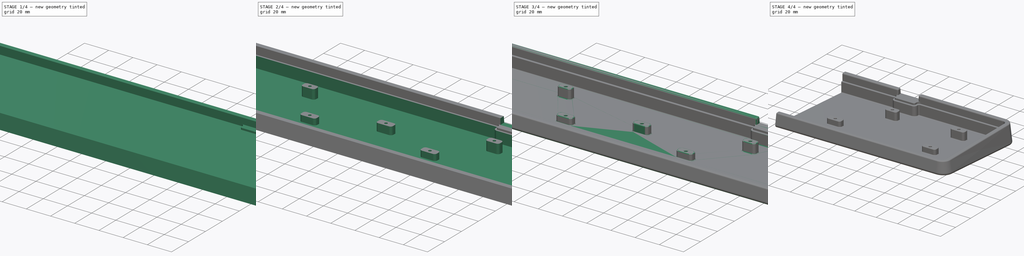
[diagram: build sequence overview — one tinted view per stage of 4, left to right]
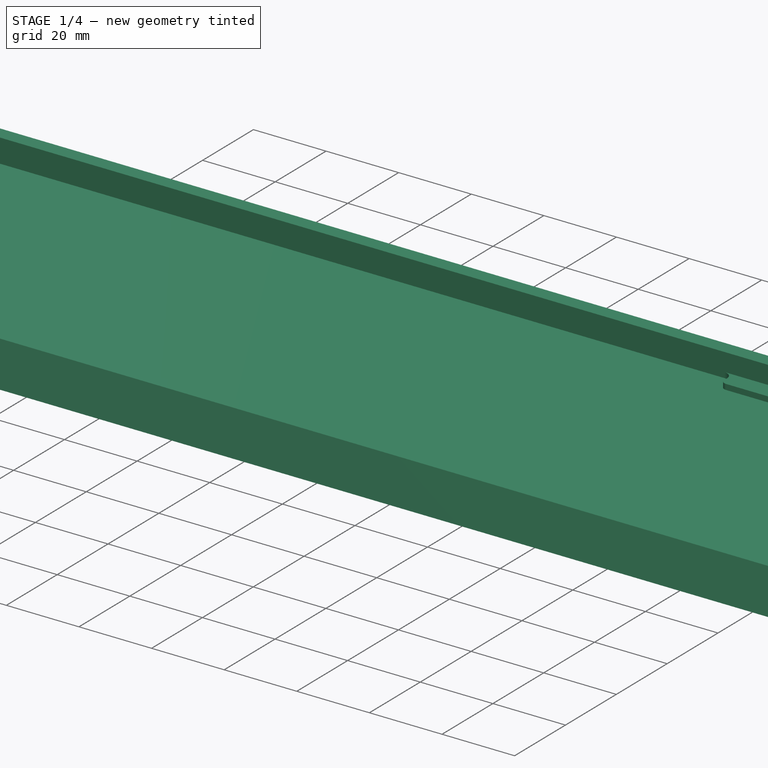
[diagram: stage 1 of 4 — iso view after this stage's code; geometry added in this stage tinted green]
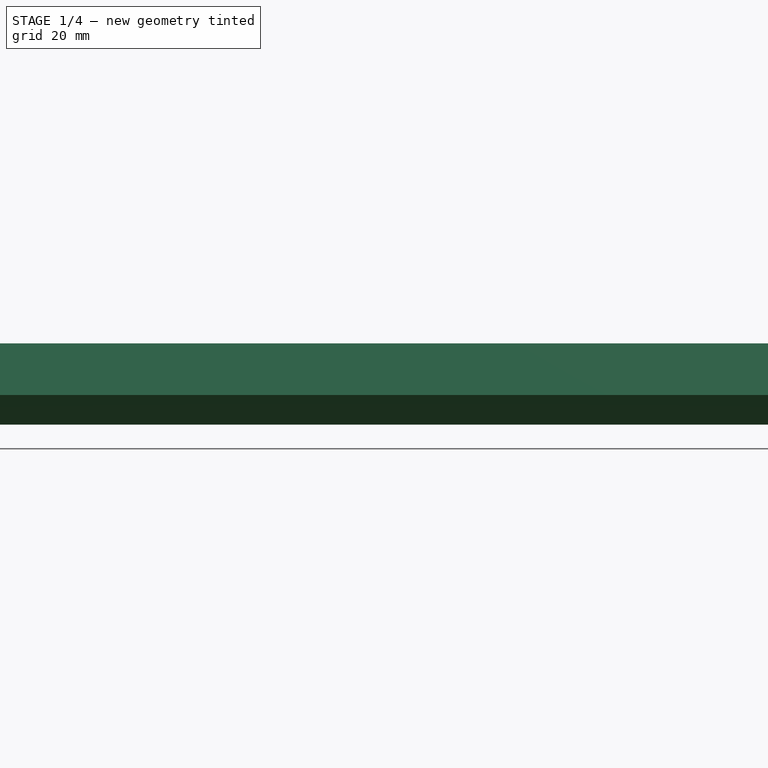
[diagram: stage 1 of 4 — front view after this stage's code; geometry added in this stage tinted green]
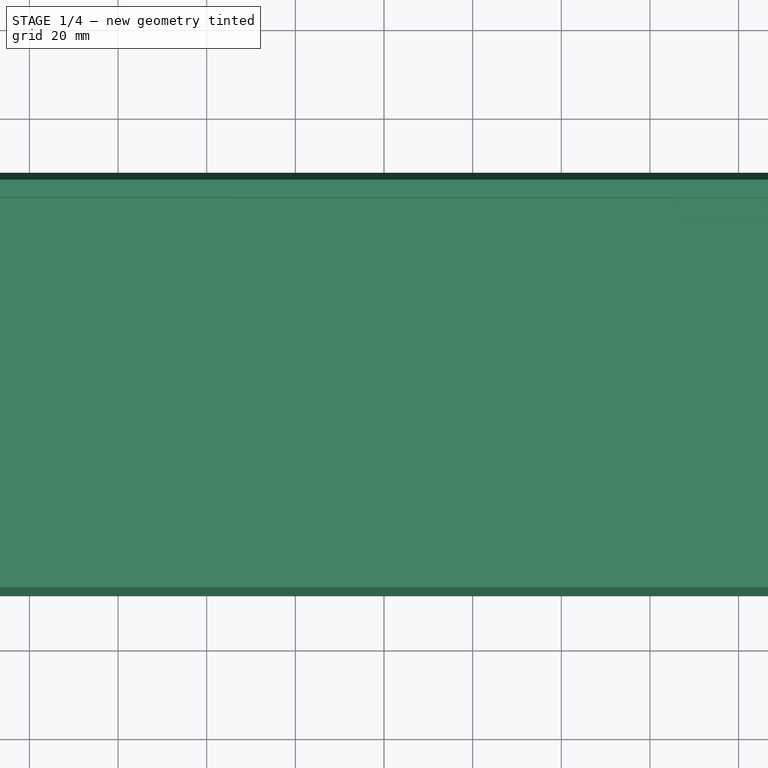
[diagram: stage 1 of 4 — top view after this stage's code; geometry added in this stage tinted green]
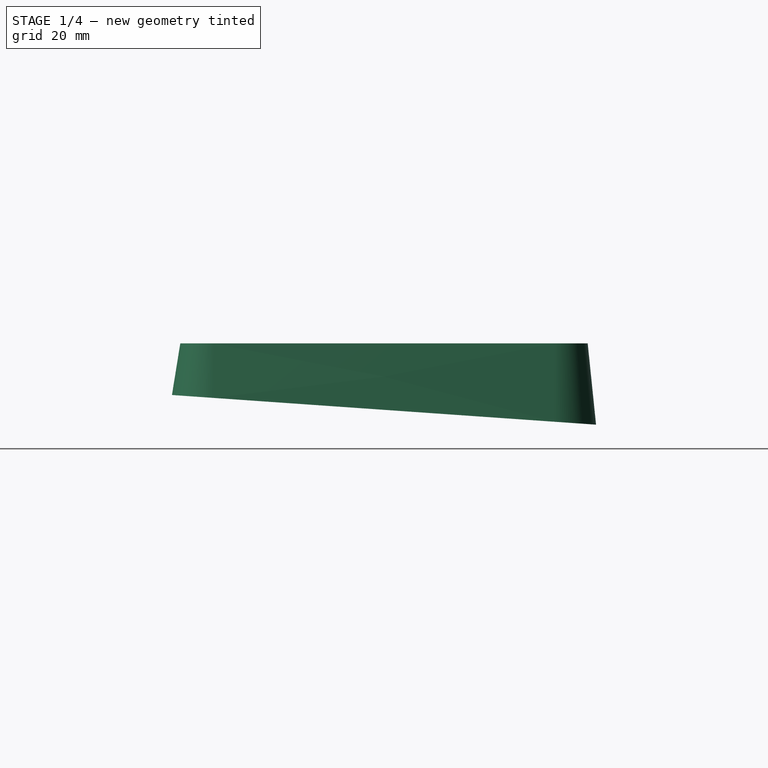
[diagram: stage 1 of 4 — right view after this stage's code; geometry added in this stage tinted green]
FCSTD DOCUMENT  (FreeCAD 0.20R)
Label: right
License: All rights reserved
LicenseURL: http://en.wikipedia.org/wiki/All_rights_reserved
objects: Sketcher::SketchObject×9, PartDesign::Pocket×6, PartDesign::Fillet×4, PartDesign::AdditiveLoft×1, PartDesign::Hole×1, PartDesign::Chamfer×1, PartDesign::Body×1
note: 36 computed .brp shape members not serialized (recipe doc carries the construction recipe); baked Part::Feature solids carry a one-line shape summary decoded from their .brp

FEATURE [Sketcher::SketchObject] Sketch001
  AttachmentOffset = pos=(0,0,0) rot=(1,0,0;-0.069813rad)
  FullyConstrained = false
  MapMode = 5
  Placement = pos=(0,0,0) rot=(1,0,0;6.21337rad)
  Support = -> [XY_Plane]
  sketch-geometry (8):
    g0: ArcOfCircle CenterX=-164.665 CenterY=38.4588 CenterZ=0 NormalX=0 NormalY=0 NormalZ=1 AngleXU=0 Radius=9.5 StartAngle=1.5708 EndAngle=3.14159
    g1: LineSegment StartX=174.165 StartY=38.4588 StartZ=0 EndX=174.165 EndY=-38.4587 EndZ=0
    g2: ArcOfCircle CenterX=164.665 CenterY=-38.4587 CenterZ=0 NormalX=0 NormalY=0 NormalZ=1 AngleXU=0 Radius=9.5 StartAngle=4.71239 EndAngle=6.28319
    g3: LineSegment StartX=-164.665 StartY=-47.9587 StartZ=0 EndX=164.665 EndY=-47.9587 EndZ=0
    g4: ArcOfCircle CenterX=-164.665 CenterY=-38.4587 CenterZ=0 NormalX=0 NormalY=0 NormalZ=1 AngleXU=0 Radius=9.5 StartAngle=3.14159 EndAngle=4.71239
    g5: LineSegment StartX=-174.165 StartY=38.4588 StartZ=0 EndX=-174.165 EndY=-38.4587 EndZ=0
    g6: LineSegment StartX=-164.665 StartY=47.9588 StartZ=0 EndX=164.665 EndY=47.9588 EndZ=0
    g7: ArcOfCircle CenterX=164.665 CenterY=38.4588 CenterZ=0 NormalX=0 NormalY=0 NormalZ=1 AngleXU=0 Radius=9.5 StartAngle=0 EndAngle=1.5708
  constraints (8):
    c: Coincident(g4,g5)
    c: Coincident(g0,g5)
    c: Coincident(g3,g4)
    c: Coincident(g0,g6)
    c: Coincident(g2,g3)
    c: Coincident(g6,g7)
    c: Coincident(g1,g2)
    c: Coincident(g1,g7)
FEATURE [Sketcher::SketchObject] Sketch002
  AttachmentOffset = pos=(0,0,15) rot=(0,0,1;0rad)
  FullyConstrained = false
  MapMode = 5
  Placement = pos=(0,0,15) rot=(0,0,1;0rad)
  Support = -> [XY_Plane]
  sketch-geometry (8):
    g0: ArcOfCircle CenterX=-164.665 CenterY=38.4588 CenterZ=0 NormalX=0 NormalY=0 NormalZ=1 AngleXU=0 Radius=7.5 StartAngle=1.5708 EndAngle=3.14159
    g1: LineSegment StartX=-164.665 StartY=45.9588 StartZ=0 EndX=164.665 EndY=45.9588 EndZ=0
    g2: ArcOfCircle CenterX=164.665 CenterY=38.4588 CenterZ=0 NormalX=0 NormalY=0 NormalZ=1 AngleXU=0 Radius=7.5 StartAngle=0 EndAngle=1.5708
    g3: LineSegment StartX=172.165 StartY=38.4588 StartZ=0 EndX=172.165 EndY=-38.4587 EndZ=0
    g4: ArcOfCircle CenterX=164.665 CenterY=-38.4587 CenterZ=0 NormalX=0 NormalY=0 NormalZ=1 AngleXU=0 Radius=7.5 StartAngle=4.71239 EndAngle=6.28319
    g5: LineSegment StartX=-164.665 StartY=-45.9587 StartZ=0 EndX=164.665 EndY=-45.9587 EndZ=0
    g6: ArcOfCircle CenterX=-164.665 CenterY=-38.4587 CenterZ=0 NormalX=0 NormalY=0 NormalZ=1 AngleXU=0 Radius=7.5 StartAngle=3.14159 EndAngle=4.71239
    g7: LineSegment StartX=-172.165 StartY=38.4588 StartZ=0 EndX=-172.165 EndY=-38.4587 EndZ=0
  constraints (8):
    c: Coincident(g6,g7)
    c: Coincident(g0,g7)
    c: Coincident(g5,g6)
    c: Coincident(g0,g1)
    c: Coincident(g4,g5)
    c: Coincident(g1,g2)
    c: Coincident(g3,g4)
    c: Coincident(g2,g3)
FEATURE [PartDesign::AdditiveLoft] AdditiveLoft
  Closed = false
  Profile = -> Sketch002
  Ruled = false
  Sections = -> [Sketch001]
FEATURE [Sketcher::SketchObject] Sketch004
  FullyConstrained = false
  MapMode = 5
  Placement = pos=(0,0,15) rot=(0,0,1;0rad)
  Support = -> [AdditiveLoft]
  sketch-geometry (8):
    g0: LineSegment StartX=-164.665 StartY=-41.9587 StartZ=0 EndX=164.665 EndY=-41.9587 EndZ=0
    g1: ArcOfCircle CenterX=-164.665 CenterY=-38.4587 CenterZ=0 NormalX=0 NormalY=0 NormalZ=1 AngleXU=0 Radius=3.5 StartAngle=3.14159 EndAngle=4.71239
    g2: LineSegment StartX=-168.165 StartY=38.4588 StartZ=0 EndX=-168.165 EndY=-38.4587 EndZ=0
    g3: ArcOfCircle CenterX=-164.665 CenterY=38.4588 CenterZ=0 NormalX=0 NormalY=0 NormalZ=1 AngleXU=0 Radius=3.5 StartAngle=1.5708 EndAngle=3.14159
    g4: ArcOfCircle CenterX=164.665 CenterY=38.4588 CenterZ=0 NormalX=0 NormalY=0 NormalZ=1 AngleXU=0 Radius=3.5 StartAngle=0 EndAngle=1.5708
    g5: LineSegment StartX=168.165 StartY=38.4588 StartZ=0 EndX=168.165 EndY=-38.4587 EndZ=0
    g6: ArcOfCircle CenterX=164.665 CenterY=-38.4587 CenterZ=0 NormalX=0 NormalY=0 NormalZ=1 AngleXU=0 Radius=3.5 StartAngle=4.71239 EndAngle=6.28319
    g7: LineSegment StartX=-164.665 StartY=41.9588 StartZ=0 EndX=164.665 EndY=41.9588 EndZ=0
  constraints (8):
    c: Coincident(g1,g2)
    c: Coincident(g2,g3)
    c: Coincident(g0,g1)
    c: Coincident(g3,g7)
    c: Coincident(g0,g6)
    c: Coincident(g4,g7)
    c: Coincident(g5,g6)
    c: Coincident(g4,g5)
FEATURE [PartDesign::Pocket] Pocket
  BaseFeature = -> AdditiveLoft
  Direction = (0,0,-1)
  Length = 5
  Length2 = 5
  Profile = -> Sketch004
  ReferenceAxis = -> Sketch004 [N_Axis]
  Type = 0
FEATURE [Sketcher::SketchObject] Sketch003
  FullyConstrained = false
  MapMode = 5
  Placement = pos=(0,0,10) rot=(0,0,1;0rad)
  Support = -> [Pocket]
  sketch-geometry (16):
    g0: ArcOfCircle CenterX=-164.665 CenterY=38.4588 CenterZ=0 NormalX=0 NormalY=0 NormalZ=1 AngleXU=0 Radius=3.5 StartAngle=1.5708 EndAngle=3.14159
    g1: LineSegment StartX=68.3125 StartY=36.9588 StartZ=0 EndX=84.3125 EndY=36.9588 EndZ=0
    g2: ArcOfCircle CenterX=84.3125 CenterY=38.4588 CenterZ=0 NormalX=0 NormalY=0 NormalZ=1 AngleXU=0 Radius=1.5 StartAngle=4.71239 EndAngle=6.28319
    g3: LineSegment StartX=85.8125 StartY=38.4588 StartZ=0 EndX=85.8125 EndY=39.4588 EndZ=0
    g4: ArcOfCircle CenterX=88.3125 CenterY=39.4588 CenterZ=0 NormalX=0 NormalY=0 NormalZ=1 AngleXU=0 Radius=2.5 StartAngle=1.5708 EndAngle=3.14159
    g5: LineSegment StartX=88.3125 StartY=41.9588 StartZ=0 EndX=164.665 EndY=41.9588 EndZ=0
    g6: ArcOfCircle CenterX=68.3125 CenterY=38.4588 CenterZ=0 NormalX=0 NormalY=0 NormalZ=1 AngleXU=0 Radius=1.5 StartAngle=3.14159 EndAngle=4.71239
    g7: LineSegment StartX=66.8125 StartY=38.4588 StartZ=0 EndX=66.8125 EndY=39.4588 EndZ=0
    g8: ArcOfCircle CenterX=64.3125 CenterY=39.4588 CenterZ=0 NormalX=0 NormalY=0 NormalZ=1 AngleXU=0 Radius=2.5 StartAngle=0 EndAngle=1.5708
    g9: LineSegment StartX=-164.665 StartY=41.9588 StartZ=0 EndX=64.3125 EndY=41.9588 EndZ=0
    g10: ArcOfCircle CenterX=164.665 CenterY=38.4588 CenterZ=0 NormalX=0 NormalY=0 NormalZ=1 AngleXU=0 Radius=3.5 StartAngle=0 EndAngle=1.5708
    g11: LineSegment StartX=168.165 StartY=38.4588 StartZ=0 EndX=168.165 EndY=-38.4587 EndZ=0
    g12: ArcOfCircle CenterX=164.665 CenterY=-38.4587 CenterZ=0 NormalX=0 NormalY=0 NormalZ=1 AngleXU=0 Radius=3.5 StartAngle=4.71239 EndAngle=6.28319
    g13: LineSegment StartX=-164.665 StartY=-41.9587 StartZ=0 EndX=164.665 EndY=-41.9587 EndZ=0
    g14: ArcOfCircle CenterX=-164.665 CenterY=-38.4587 CenterZ=0 NormalX=0 NormalY=0 NormalZ=1 AngleXU=0 Radius=3.5 StartAngle=3.14159 EndAngle=4.71239
    g15: LineSegment StartX=-168.165 StartY=38.4588 StartZ=0 EndX=-168.165 EndY=-38.4587 EndZ=0
  constraints (16):
    c: Coincident(g14,g15)
    c: Coincident(g0,g15)
    c: Coincident(g13,g14)
    c: Coincident(g0,g9)
    c: Coincident(g8,g9)
    c: Coincident(g6,g7)
    c: Coincident(g7,g8)
    c: Coincident(g1,g6)
    c: Coincident(g1,g2)
    c: Coincident(g2,g3)
    c: Coincident(g3,g4)
    c: Coincident(g4,g5)
    c: Coincident(g12,g13)
    c: Coincident(g5,g10)
    c: Coincident(g11,g12)
    c: Coincident(g10,g11)
FEATURE [PartDesign::Pocket] Pocket001
  BaseFeature = -> Pocket
  Direction = (0,0,-1)
  Length = 1.5
  Length2 = 5
  Profile = -> Sketch003
  ReferenceAxis = -> Sketch003 [N_Axis]
  Type = 0
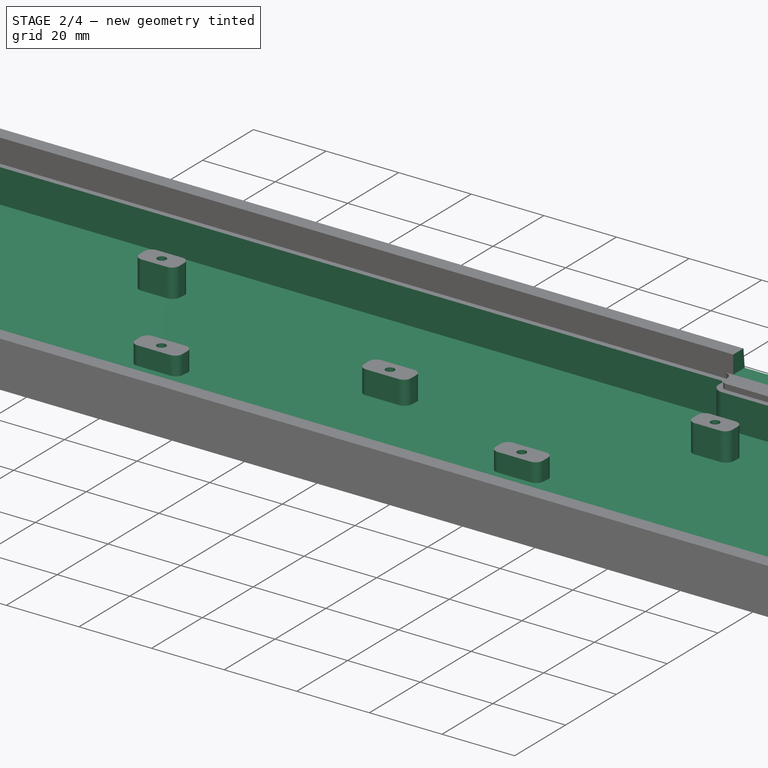
[diagram: stage 2 of 4 — iso view after this stage's code; geometry added in this stage tinted green]
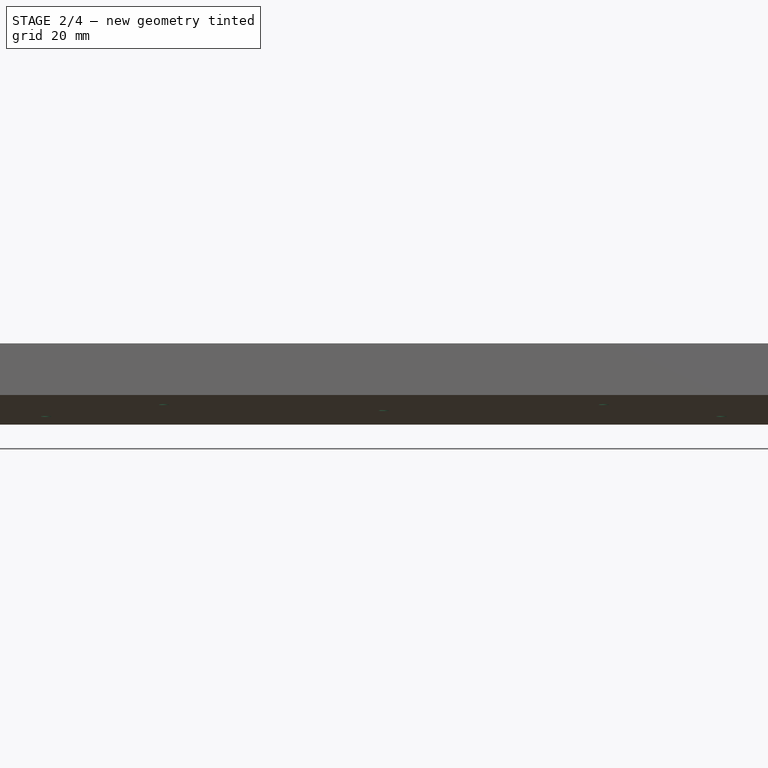
[diagram: stage 2 of 4 — front view after this stage's code; geometry added in this stage tinted green]
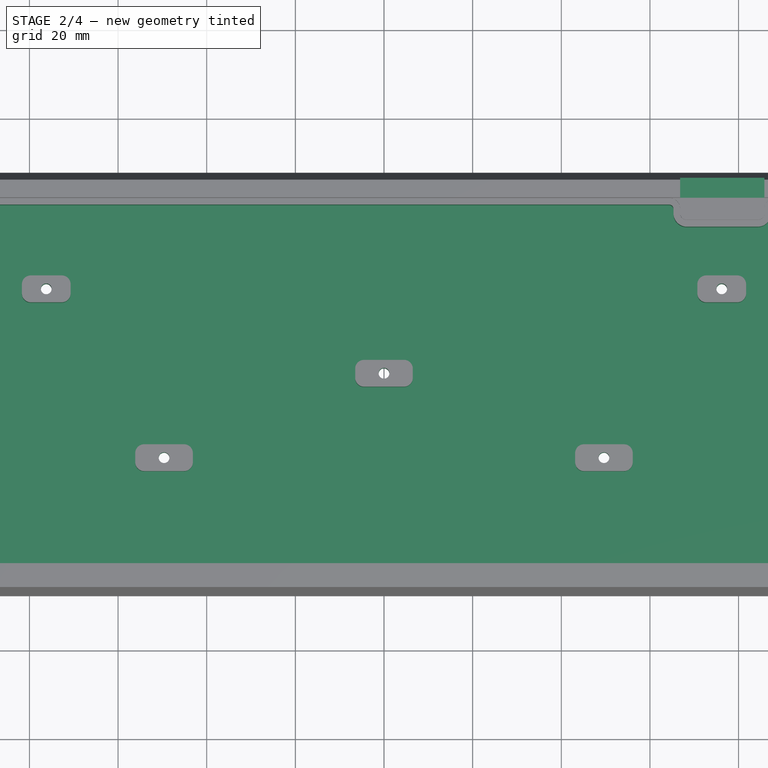
[diagram: stage 2 of 4 — top view after this stage's code; geometry added in this stage tinted green]
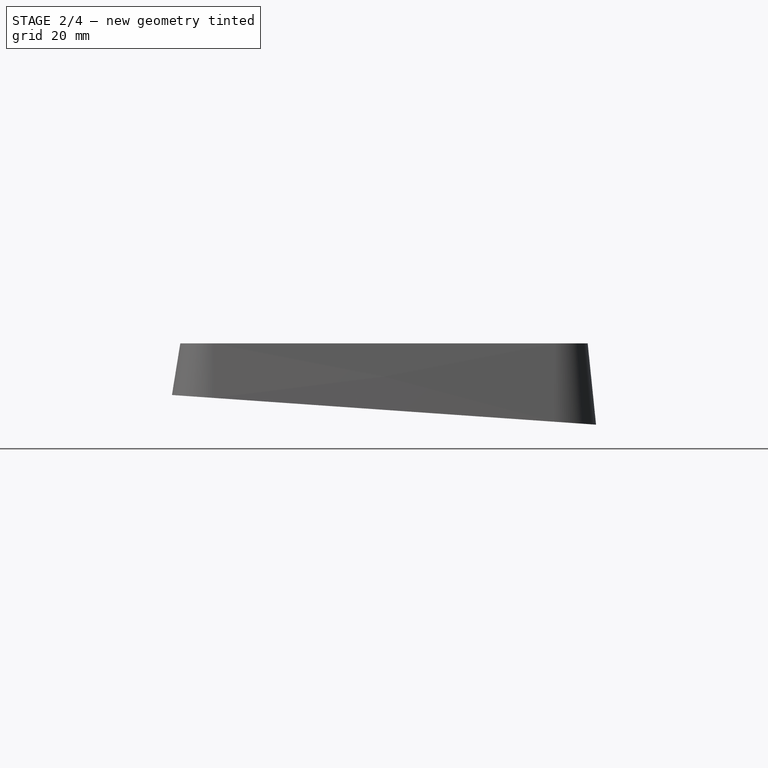
[diagram: stage 2 of 4 — right view after this stage's code; geometry added in this stage tinted green]
FEATURE [Sketcher::SketchObject] Sketch007
  FullyConstrained = false
  MapMode = 5
  Placement = pos=(0,0,10) rot=(0,0,1;0rad)
  Support = -> [Pocket]
  sketch-geometry (88):
    g0: ArcOfCircle CenterX=79.7 CenterY=20.4063 CenterZ=0 NormalX=0 NormalY=0 NormalZ=1 AngleXU=0 Radius=2 StartAngle=4.71239 EndAngle=6.28319
    g1: ArcOfCircle CenterX=-164.665 CenterY=38.4588 CenterZ=0 NormalX=0 NormalY=0 NormalZ=1 AngleXU=0 Radius=2 StartAngle=1.5708 EndAngle=3.14159
    g2: ArcOfCircle CenterX=-142.613 CenterY=22.4562 CenterZ=0 NormalX=0 NormalY=0 NormalZ=1 AngleXU=0 Radius=2 StartAngle=1.5708 EndAngle=3.14159
    g3: LineSegment StartX=-144.613 StartY=22.4562 StartZ=0 EndX=-144.613 EndY=20.4062 EndZ=0
    g4: ArcOfCircle CenterX=-142.613 CenterY=20.4062 CenterZ=0 NormalX=0 NormalY=0 NormalZ=1 AngleXU=0 Radius=2 StartAngle=3.14159 EndAngle=4.71239
    g5: LineSegment StartX=-133.612 StartY=18.4062 StartZ=0 EndX=-142.612 EndY=18.4062 EndZ=0
    g6: ArcOfCircle CenterX=-133.613 CenterY=20.4062 CenterZ=0 NormalX=0 NormalY=0 NormalZ=1 AngleXU=0 Radius=2 StartAngle=4.71239 EndAngle=6.28319
    g7: LineSegment StartX=-131.613 StartY=22.4562 StartZ=0 EndX=-131.613 EndY=20.4062 EndZ=0
    g8: LineSegment StartX=-133.613 StartY=24.4562 StartZ=0 EndX=-142.613 EndY=24.4562 EndZ=0
    g9: ArcOfCircle CenterX=-133.613 CenterY=22.4562 CenterZ=0 NormalX=0 NormalY=0 NormalZ=1 AngleXU=0 Radius=2 StartAngle=0 EndAngle=1.5708
    g10: ArcOfCircle CenterX=-142.612 CenterY=-17.6488 CenterZ=0 NormalX=0 NormalY=0 NormalZ=1 AngleXU=0 Radius=2 StartAngle=3.14159 EndAngle=4.71239
    g11: LineSegment StartX=-144.612 StartY=-17.6488 StartZ=0 EndX=-144.612 EndY=-15.5988 EndZ=0
    g12: ArcOfCircle CenterX=-142.612 CenterY=-15.5988 CenterZ=0 NormalX=0 NormalY=0 NormalZ=1 AngleXU=0 Radius=2 StartAngle=1.5708 EndAngle=3.14159
    g13: LineSegment StartX=-133.612 StartY=-13.5988 StartZ=0 EndX=-142.612 EndY=-13.5988 EndZ=0
    g14: ArcOfCircle CenterX=-133.612 CenterY=-15.5988 CenterZ=0 NormalX=0 NormalY=0 NormalZ=1 AngleXU=0 Radius=2 StartAngle=0 EndAngle=1.5708
    g15: LineSegment StartX=-131.612 StartY=-17.6488 StartZ=0 EndX=-131.612 EndY=-15.5988 EndZ=0
    g16: LineSegment StartX=-133.612 StartY=-19.6488 StartZ=0 EndX=-142.612 EndY=-19.6488 EndZ=0
    g17: ArcOfCircle CenterX=-133.612 CenterY=-17.6488 CenterZ=0 NormalX=0 NormalY=0 NormalZ=1 AngleXU=0 Radius=2 StartAngle=4.71239 EndAngle=6.28319
    g18: ArcOfCircle CenterX=4.5 CenterY=3.40625 CenterZ=0 NormalX=0 NormalY=0 NormalZ=1 AngleXU=0 Radius=2 StartAngle=0 EndAngle=1.5708
    g19: LineSegment StartX=6.5 StartY=1.35625 StartZ=0 EndX=6.5 EndY=3.40625 EndZ=0
    g20: ArcOfCircle CenterX=4.5 CenterY=1.35625 CenterZ=0 NormalX=0 NormalY=0 NormalZ=1 AngleXU=0 Radius=2 StartAngle=4.71239 EndAngle=6.28319
    g21: LineSegment StartX=-4.5 StartY=-0.64375 StartZ=0 EndX=4.5 EndY=-0.64375 EndZ=0
    g22: ArcOfCircle CenterX=-4.5 CenterY=1.35625 CenterZ=0 NormalX=0 NormalY=0 NormalZ=1 AngleXU=0 Radius=2 StartAngle=3.14159 EndAngle=4.71239
    g23: LineSegment StartX=-6.5 StartY=1.35625 StartZ=0 EndX=-6.5 EndY=3.40625 EndZ=0
    g24: LineSegment StartX=-4.5 StartY=5.40625 StartZ=0 EndX=4.5 EndY=5.40625 EndZ=0
    g25: ArcOfCircle CenterX=-4.5 CenterY=3.40625 CenterZ=0 NormalX=0 NormalY=0 NormalZ=1 AngleXU=0 Radius=2 StartAngle=1.5708 EndAngle=3.14159
    g26: ArcOfCircle CenterX=-45.125 CenterY=-17.6937 CenterZ=0 NormalX=0 NormalY=0 NormalZ=1 AngleXU=0 Radius=2 StartAngle=4.71239 EndAngle=6.28319
    g27: LineSegment StartX=-43.125 StartY=-15.6437 StartZ=0 EndX=-43.125 EndY=-17.6937 EndZ=0
    g28: ArcOfCircle CenterX=-45.125 CenterY=-15.6437 CenterZ=0 NormalX=0 NormalY=0 NormalZ=1 AngleXU=0 Radius=2 StartAngle=0 EndAngle=1.5708
    g29: LineSegment StartX=-54.125 StartY=-13.6437 StartZ=0 EndX=-45.125 EndY=-13.6437 EndZ=0
    g30: ArcOfCircle CenterX=-54.125 CenterY=-15.6437 CenterZ=0 NormalX=0 NormalY=0 NormalZ=1 AngleXU=0 Radius=2 StartAngle=1.5708 EndAngle=3.14159
    g31: LineSegment StartX=-56.125 StartY=-15.6437 StartZ=0 EndX=-56.125 EndY=-17.6937 EndZ=0
    g32: LineSegment StartX=-54.125 StartY=-19.6937 StartZ=0 EndX=-45.125 EndY=-19.6937 EndZ=0
    g33: ArcOfCircle CenterX=-54.125 CenterY=-17.6937 CenterZ=0 NormalX=0 NormalY=0 NormalZ=1 AngleXU=0 Radius=2 StartAngle=3.14159 EndAngle=4.71239
    g34: ArcOfCircle CenterX=-79.7 CenterY=22.4563 CenterZ=0 NormalX=0 NormalY=0 NormalZ=1 AngleXU=0 Radius=2 StartAngle=1.5708 EndAngle=3.14159
    g35: LineSegment StartX=-79.7 StartY=24.4563 StartZ=0 EndX=-72.7 EndY=24.4563 EndZ=0
    g36: ArcOfCircle CenterX=-72.7 CenterY=22.4563 CenterZ=0 NormalX=0 NormalY=0 NormalZ=1 AngleXU=0 Radius=2 StartAngle=0 EndAngle=1.5708
    g37: LineSegment StartX=-70.7 StartY=20.4063 StartZ=0 EndX=-70.7 EndY=22.4563 EndZ=0
    g38: ArcOfCircle CenterX=-72.7 CenterY=20.4063 CenterZ=0 NormalX=0 NormalY=0 NormalZ=1 AngleXU=0 Radius=2 StartAngle=4.71239 EndAngle=6.28319
    g39: LineSegment StartX=-79.7 StartY=18.4063 StartZ=0 EndX=-72.7 EndY=18.4063 EndZ=0
    g40: LineSegment StartX=-81.7 StartY=20.4063 StartZ=0 EndX=-81.7 EndY=22.4563 EndZ=0
    g41: ArcOfCircle CenterX=-79.7 CenterY=20.4063 CenterZ=0 NormalX=0 NormalY=0 NormalZ=1 AngleXU=0 Radius=2 StartAngle=3.14159 EndAngle=4.71239
    g42: ArcOfCircle CenterX=142.613 CenterY=22.4562 CenterZ=0 NormalX=0 NormalY=0 NormalZ=1 AngleXU=0 Radius=2 StartAngle=0 EndAngle=1.5708
    g43: LineSegment StartX=144.613 StartY=22.4562 StartZ=0 EndX=144.613 EndY=20.4062 EndZ=0
    g44: ArcOfCircle CenterX=142.613 CenterY=20.4062 CenterZ=0 NormalX=0 NormalY=0 NormalZ=1 AngleXU=0 Radius=2 StartAngle=4.71239 EndAngle=6.28319
    g45: LineSegment StartX=133.612 StartY=18.4062 StartZ=0 EndX=142.612 EndY=18.4062 EndZ=0
    g46: ArcOfCircle CenterX=133.613 CenterY=20.4062 CenterZ=0 NormalX=0 NormalY=0 NormalZ=1 AngleXU=0 Radius=2 StartAngle=3.14159 EndAngle=4.71239
    g47: LineSegment StartX=131.613 StartY=22.4562 StartZ=0 EndX=131.613 EndY=20.4062 EndZ=0
    g48: LineSegment StartX=133.613 StartY=24.4562 StartZ=0 EndX=142.613 EndY=24.4562 EndZ=0
    g49: ArcOfCircle CenterX=133.613 CenterY=22.4562 CenterZ=0 NormalX=0 NormalY=0 NormalZ=1 AngleXU=0 Radius=2 StartAngle=1.5708 EndAngle=3.14159
    g50: ArcOfCircle CenterX=142.612 CenterY=-17.6488 CenterZ=0 NormalX=0 NormalY=0 NormalZ=1 AngleXU=0 Radius=2 StartAngle=4.71239 EndAngle=6.28319
    g51: LineSegment StartX=144.612 StartY=-17.6488 StartZ=0 EndX=144.612 EndY=-15.5988 EndZ=0
    g52: ArcOfCircle CenterX=142.612 CenterY=-15.5988 CenterZ=0 NormalX=0 NormalY=0 NormalZ=1 AngleXU=0 Radius=2 StartAngle=0 EndAngle=1.5708
    g53: LineSegment StartX=133.612 StartY=-13.5988 StartZ=0 EndX=142.612 EndY=-13.5988 EndZ=0
    g54: ArcOfCircle CenterX=133.612 CenterY=-15.5988 CenterZ=0 NormalX=0 NormalY=0 NormalZ=1 AngleXU=0 Radius=2 StartAngle=1.5708 EndAngle=3.14159
    g55: LineSegment StartX=131.612 StartY=-17.6488 StartZ=0 EndX=131.612 EndY=-15.5988 EndZ=0
    g56: LineSegment StartX=133.612 StartY=-19.6488 StartZ=0 EndX=142.612 EndY=-19.6488 EndZ=0
    g57: ArcOfCircle CenterX=133.612 CenterY=-17.6488 CenterZ=0 NormalX=0 NormalY=0 NormalZ=1 AngleXU=0 Radius=2 StartAngle=3.14159 EndAngle=4.71239
    g58: ArcOfCircle CenterX=45.125 CenterY=-17.6937 CenterZ=0 NormalX=0 NormalY=0 NormalZ=1 AngleXU=0 Radius=2 StartAngle=3.14159 EndAngle=4.71239
    g59: LineSegment StartX=43.125 StartY=-15.6437 StartZ=0 EndX=43.125 EndY=-17.6937 EndZ=0
    g60: ArcOfCircle CenterX=45.125 CenterY=-15.6437 CenterZ=0 NormalX=0 NormalY=0 NormalZ=1 AngleXU=0 Radius=2 StartAngle=1.5708 EndAngle=3.14159
    g61: LineSegment StartX=54.125 StartY=-13.6437 StartZ=0 EndX=45.125 EndY=-13.6437 EndZ=0
    g62: ArcOfCircle CenterX=54.125 CenterY=-15.6437 CenterZ=0 NormalX=0 NormalY=0 NormalZ=1 AngleXU=0 Radius=2 StartAngle=0 EndAngle=1.5708
    g63: LineSegment StartX=56.125 StartY=-15.6437 StartZ=0 EndX=56.125 EndY=-17.6937 EndZ=0
    g64: LineSegment StartX=54.125 StartY=-19.6937 StartZ=0 EndX=45.125 EndY=-19.6937 EndZ=0
    g65: ArcOfCircle CenterX=54.125 CenterY=-17.6937 CenterZ=0 NormalX=0 NormalY=0 NormalZ=1 AngleXU=0 Radius=2 StartAngle=4.71239 EndAngle=6.28319
    g66: ArcOfCircle CenterX=79.7 CenterY=22.4563 CenterZ=0 NormalX=0 NormalY=0 NormalZ=1 AngleXU=0 Radius=2 StartAngle=0 EndAngle=1.5708
    g67: LineSegment StartX=79.7 StartY=24.4563 StartZ=0 EndX=72.7 EndY=24.4563 EndZ=0
    g68: ArcOfCircle CenterX=72.7 CenterY=22.4563 CenterZ=0 NormalX=0 NormalY=0 NormalZ=1 AngleXU=0 Radius=2 StartAngle=1.5708 EndAngle=3.14159
    g69: LineSegment StartX=70.7 StartY=20.4063 StartZ=0 EndX=70.7 EndY=22.4563 EndZ=0
    g70: ArcOfCircle CenterX=72.7 CenterY=20.4063 CenterZ=0 NormalX=0 NormalY=0 NormalZ=1 AngleXU=0 Radius=2 StartAngle=3.14159 EndAngle=4.71239
    g71: LineSegment StartX=79.7 StartY=18.4063 StartZ=0 EndX=72.7 EndY=18.4063 EndZ=0
    g72: LineSegment StartX=81.7 StartY=20.4063 StartZ=0 EndX=81.7 EndY=22.4563 EndZ=0
    g73: ArcOfCircle CenterX=164.665 CenterY=38.4588 CenterZ=0 NormalX=0 NormalY=0 NormalZ=1 AngleXU=0 Radius=2 StartAngle=0 EndAngle=1.5708
    g74: LineSegment StartX=-164.665 StartY=-40.4587 StartZ=0 EndX=164.665 EndY=-40.4587 EndZ=0
    g75: ArcOfCircle CenterX=164.665 CenterY=-38.4587 CenterZ=0 NormalX=0 NormalY=0 NormalZ=1 AngleXU=0 Radius=2 StartAngle=4.71239 EndAngle=6.28319
    g76: LineSegment StartX=-166.665 StartY=38.4588 StartZ=0 EndX=-166.665 EndY=-38.4587 EndZ=0
    g77: ArcOfCircle CenterX=-164.665 CenterY=-38.4587 CenterZ=0 NormalX=0 NormalY=0 NormalZ=1 AngleXU=0 Radius=2 StartAngle=3.14159 EndAngle=4.71239
    g78: ArcOfCircle CenterX=64.3125 CenterY=39.4588 CenterZ=0 NormalX=0 NormalY=0 NormalZ=1 AngleXU=0 Radius=1 StartAngle=0 EndAngle=1.5708
    g79: LineSegment StartX=65.3125 StartY=38.4588 StartZ=0 EndX=65.3125 EndY=39.4588 EndZ=0
    g80: LineSegment StartX=-164.665 StartY=40.4588 StartZ=0 EndX=64.3125 EndY=40.4588 EndZ=0
    g81: LineSegment StartX=166.665 StartY=38.4588 StartZ=0 EndX=166.665 EndY=-38.4587 EndZ=0
    g82: ArcOfCircle CenterX=84.3125 CenterY=38.4588 CenterZ=0 NormalX=0 NormalY=0 NormalZ=1 AngleXU=0 Radius=3 StartAngle=4.71239 EndAngle=6.28319
    g83: LineSegment StartX=88.3125 StartY=40.4588 StartZ=0 EndX=164.665 EndY=40.4588 EndZ=0
    g84: ArcOfCircle CenterX=88.3125 CenterY=39.4588 CenterZ=0 NormalX=0 NormalY=0 NormalZ=1 AngleXU=0 Radius=1 StartAngle=1.5708 EndAngle=3.14159
    g85: LineSegment StartX=87.3125 StartY=38.4588 StartZ=0 EndX=87.3125 EndY=39.4588 EndZ=0
    g86: ArcOfCircle CenterX=68.3125 CenterY=38.4588 CenterZ=0 NormalX=0 NormalY=0 NormalZ=1 AngleXU=0 Radius=3 StartAngle=3.14159 EndAngle=4.71239
    g87: LineSegment StartX=68.3125 StartY=35.4588 StartZ=0 EndX=84.3125 EndY=35.4588 EndZ=0
FEATURE [PartDesign::Pocket] Pocket002
  BaseFeature = -> Pocket001
  Direction = (0,0,-1)
  Length = 0
  Length2 = 5
  Offset = -2
  Profile = -> Sketch007
  ReferenceAxis = -> Sketch007 [N_Axis]
  Type = 3
  UpToFace = -> Pocket001 [Face18]
FEATURE [Sketcher::SketchObject] Sketch005
  ExternalGeometry = -> [Pocket002,Sketch001]
  FullyConstrained = true
  MapMode = 5
  Placement = pos=(0,0,15) rot=(0,0,1;0rad)
  Support = -> [Pocket002]
  sketch-geometry (4):
    g0: LineSegment StartX=66.8125 StartY=39.4588 StartZ=0 EndX=85.8125 EndY=39.4588 EndZ=0
    g1: LineSegment StartX=85.8125 StartY=39.4588 StartZ=0 EndX=85.8125 EndY=47.8419 EndZ=0
    g2: LineSegment StartX=85.8125 StartY=47.8419 StartZ=0 EndX=66.8125 EndY=47.8419 EndZ=0
    g3: LineSegment StartX=66.8125 StartY=47.8419 StartZ=0 EndX=66.8125 EndY=39.4588 EndZ=0
  constraints (11):
    c: Coincident(g0,g1)
    c: Coincident(g1,g2)
    c: Coincident(g2,g3)
    c: Coincident(g3,g0)
    c: Horizontal(g0)
    c: Horizontal(g2)
    c: Vertical(g1)
    c: Vertical(g3)
    c: Coincident(g0,g-3)
    c: Vertical(g1,g-4)
    c: PointOnObject(g1,g-5)
FEATURE [PartDesign::Pocket] Pocket003
  BaseFeature = -> Pocket002
  Direction = (0,0,-1)
  Length = 0
  Length2 = 5
  Profile = -> Sketch005
  ReferenceAxis = -> Sketch005 [N_Axis]
  Type = 3
  UpToFace = -> Pocket002 [Face27]
FEATURE [Sketcher::SketchObject] Sketch006
  ExternalGeometry = -> [Pocket002]
  FullyConstrained = true
  MapMode = 5
  Placement = pos=(0,0,8.5) rot=(0,0,1;0rad)
  Support = -> [Pocket002]
  sketch-geometry (9):
    g0: Circle CenterX=76.2 CenterY=21.4313 CenterZ=0 NormalX=0 NormalY=0 NormalZ=1 AngleXU=0 Radius=1.1
    g1: Circle CenterX=138.112 CenterY=-16.6238 CenterZ=0 NormalX=0 NormalY=0 NormalZ=1 AngleXU=0 Radius=1.1
    g2: Circle CenterX=-49.625 CenterY=-16.6687 CenterZ=0 NormalX=0 NormalY=0 NormalZ=1 AngleXU=0 Radius=1.1
    g3: Circle CenterX=49.625 CenterY=-16.6687 CenterZ=0 NormalX=0 NormalY=0 NormalZ=1 AngleXU=0 Radius=1.1
    g4: Circle CenterX=-138.112 CenterY=-16.6238 CenterZ=0 NormalX=0 NormalY=0 NormalZ=1 AngleXU=0 Radius=1.1
    g5: Circle CenterX=138.113 CenterY=21.4312 CenterZ=0 NormalX=0 NormalY=0 NormalZ=1 AngleXU=0 Radius=1.1
    g6: Circle CenterX=-76.2 CenterY=21.4313 CenterZ=0 NormalX=0 NormalY=0 NormalZ=1 AngleXU=0 Radius=1.1
    g7: Circle CenterX=-2.23076e-07 CenterY=2.38125 CenterZ=0 NormalX=0 NormalY=0 NormalZ=1 AngleXU=0 Radius=1.1
    g8: Circle CenterX=-138.113 CenterY=21.4312 CenterZ=0 NormalX=0 NormalY=0 NormalZ=1 AngleXU=0 Radius=1.1
  constraints (18):
    c: Equal(g2,g4)
    c: Equal(g4,g6)
    c: Equal(g6,g8)
    c: Equal(g8,g0)
    c: Equal(g0,g1)
    c: Equal(g1,g3)
    c: Equal(g3,g5)
    c: Equal(g5,g7)
    c: Diameter(g0) = 2.2
    c: Symmetric(g-3,g-4,g0)
    c: Symmetric(g-7,g-8,g2)
    c: Symmetric(g-11,g-12,g4)
    c: Symmetric(g-15,g-16,g6)
    c: Symmetric(g-17,g-18,g8)
    c: Symmetric(g-20,g-19,g7)
    c: Symmetric(g-13,g-14,g5)
    c: Symmetric(g-9,g-10,g3)
    c: Symmetric(g-5,g-6,g1)
FEATURE [PartDesign::Hole] Hole
  BaseFeature = -> Pocket003
  CustomThreadClearance = 0
  Depth = 730.444
  DepthType = 1
  Diameter = 2.42
  DrillForDepth = false
  DrillPoint = 1
  DrillPointAngle = 118
  HoleCutCountersinkAngle = 90
  HoleCutCustomValues = false
  HoleCutDepth = 0
  HoleCutDiameter = 6.1
  HoleCutType = 0
  ModelThread = false
  Profile = -> Sketch006
  Tapered = false
  TaperedAngle = 90
  ThreadClass = 0
  ThreadDepth = 730.444
  ThreadDepthType = 0
  ThreadDirection = 0
  ThreadFit = 0
  ThreadSize = 7
  ThreadType = 1
  Threaded = false
  UseCustomThreadClearance = false
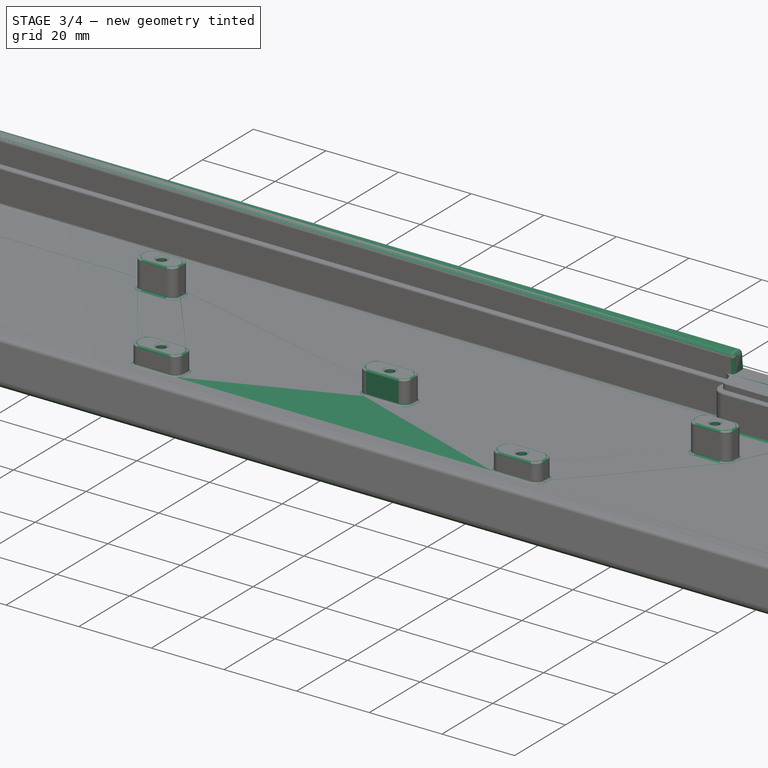
[diagram: stage 3 of 4 — iso view after this stage's code; geometry added in this stage tinted green]
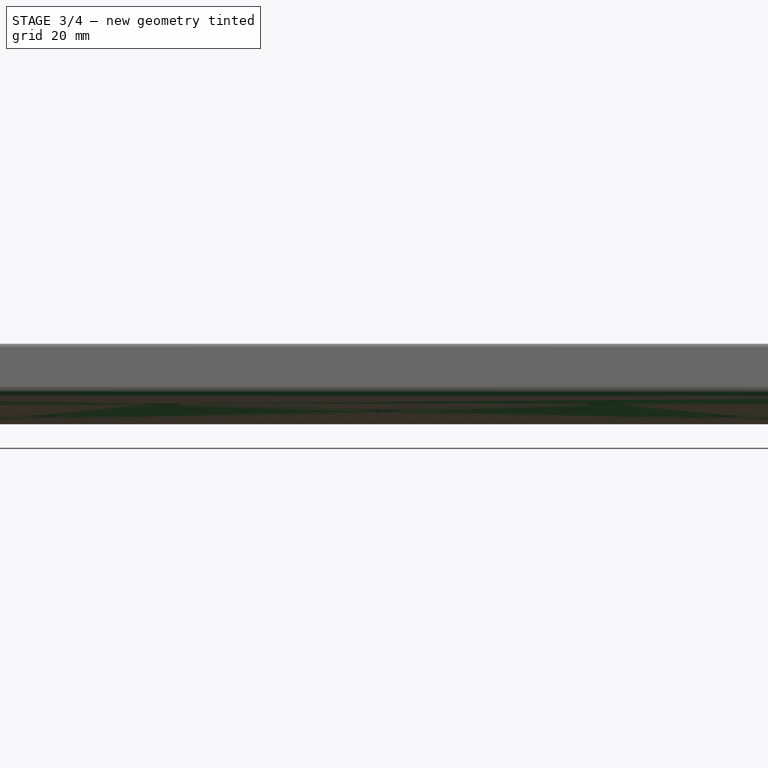
[diagram: stage 3 of 4 — front view after this stage's code; geometry added in this stage tinted green]
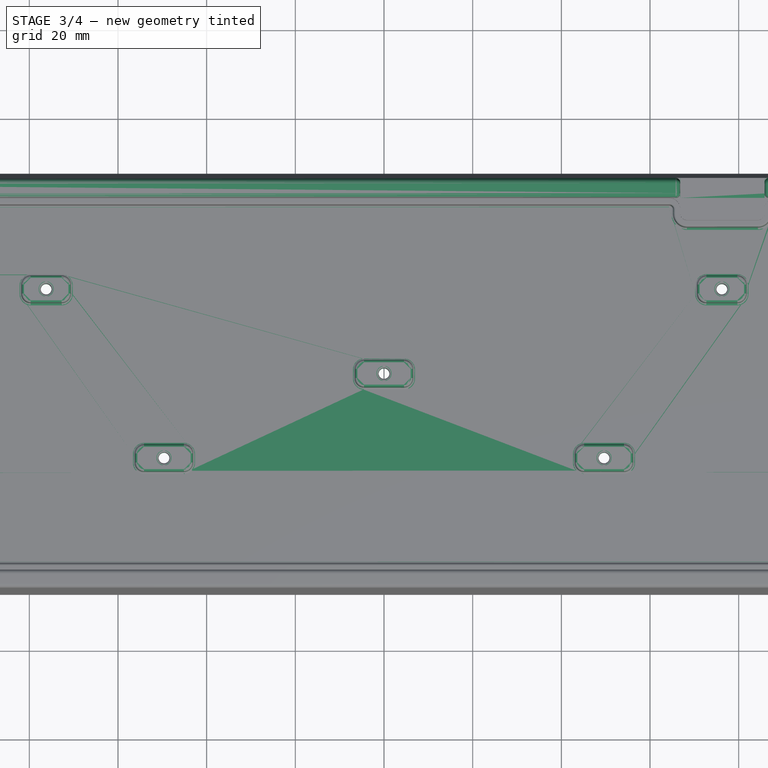
[diagram: stage 3 of 4 — top view after this stage's code; geometry added in this stage tinted green]
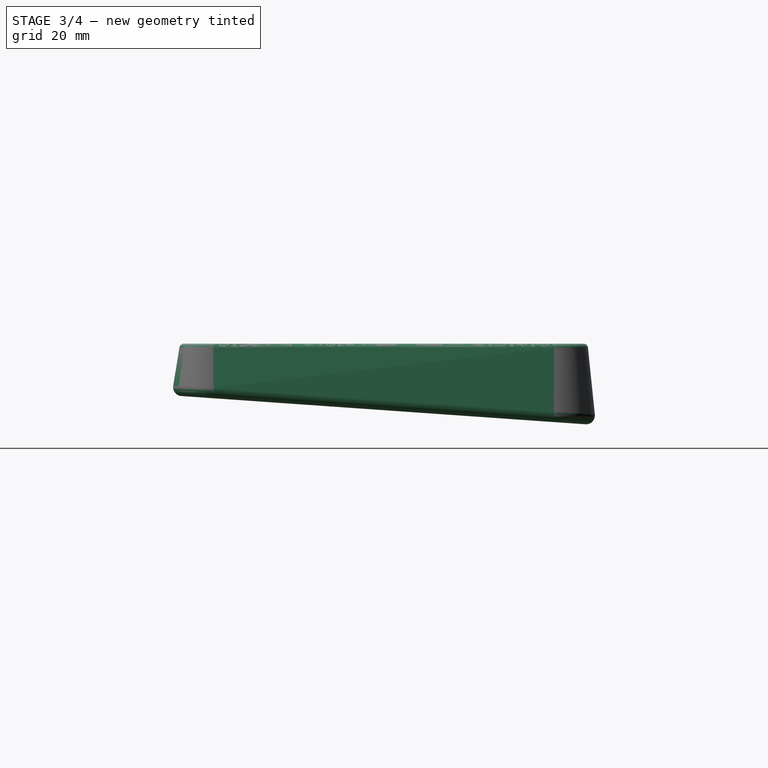
[diagram: stage 3 of 4 — right view after this stage's code; geometry added in this stage tinted green]
FEATURE [PartDesign::Chamfer] Chamfer
  Angle = 45
  Base = -> Hole [Edge72,Edge68,Edge71,Edge67,Edge66,Edge65,Edge70,Edge69,Edge64]
  BaseFeature = -> Hole
  ChamferType = 0
  FlipDirection = false
  Size = 3
  Size2 = 1
  SupportTransform = false
  UseAllEdges = false
FEATURE [PartDesign::Fillet] Fillet
  Base = -> Chamfer [Face49,Face43,Face44,Face32,Face48,Face45,Face47,Face46,Face50,Edge389,Face135]
  BaseFeature = -> Chamfer
  Radius = 0.5
  SupportTransform = false
  UseAllEdges = false
FEATURE [PartDesign::Fillet] Fillet001
  Base = -> Fillet [Face38,Edge111,Edge52,Edge115,Edge54]
  BaseFeature = -> Fillet
  Radius = 1
  SupportTransform = false
  UseAllEdges = false
FEATURE [PartDesign::Fillet] Fillet002
  Base = -> Fillet001 [Face4]
  BaseFeature = -> Fillet001
  Radius = 2
  SupportTransform = false
  UseAllEdges = false
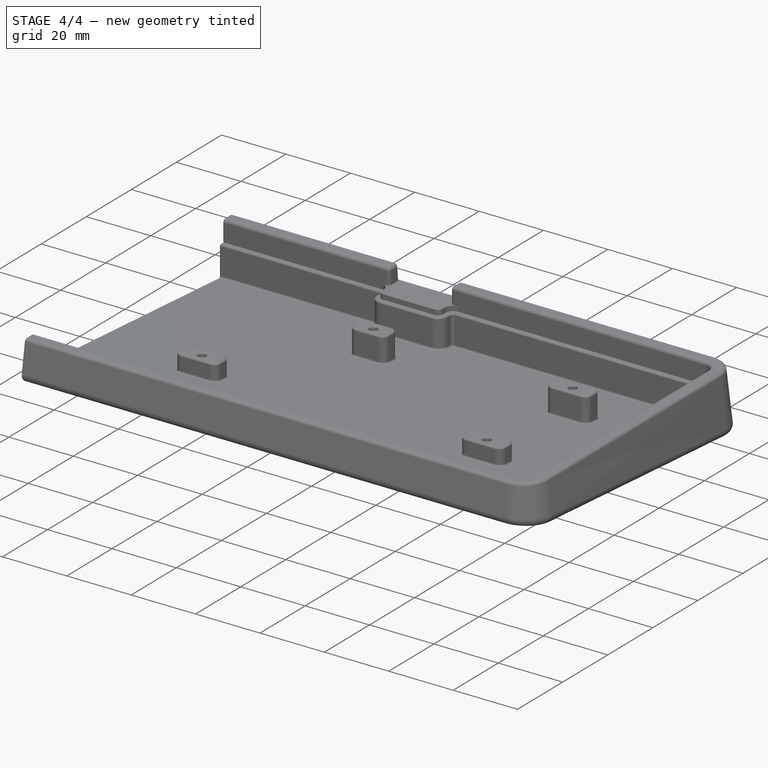
[diagram: stage 4 of 4 — iso view after this stage's code; geometry added in this stage tinted green]
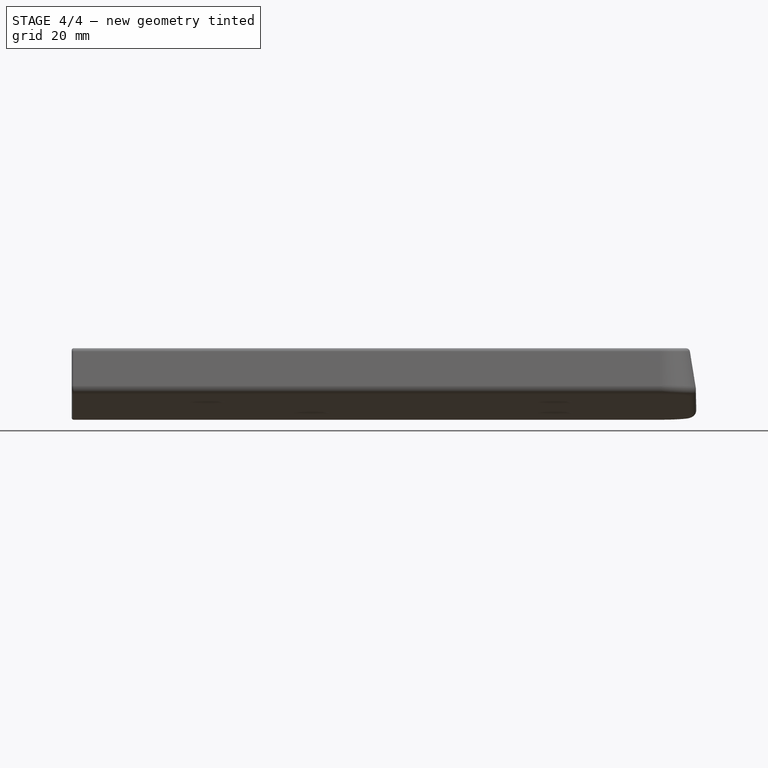
[diagram: stage 4 of 4 — front view after this stage's code; geometry added in this stage tinted green]
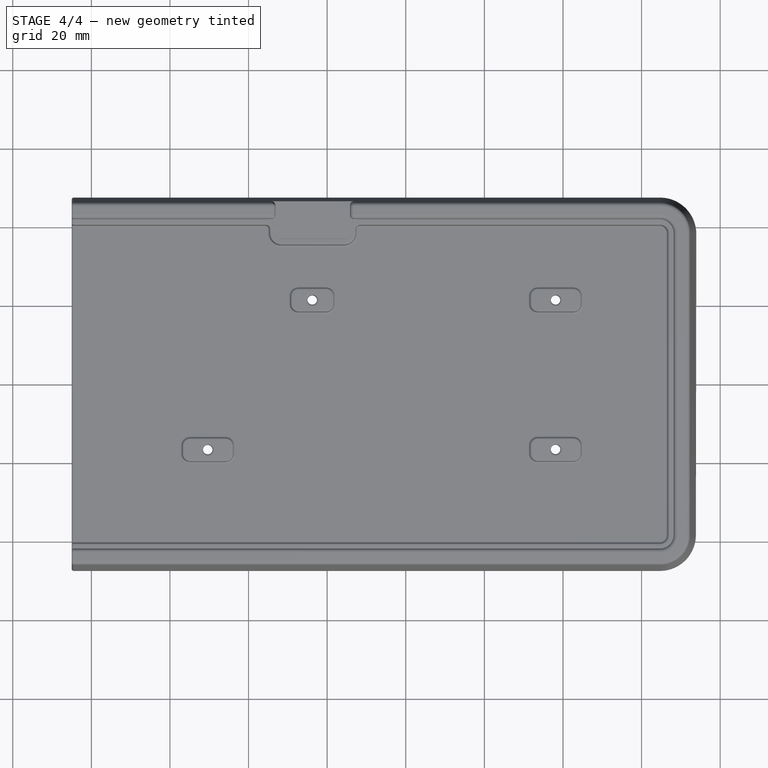
[diagram: stage 4 of 4 — top view after this stage's code; geometry added in this stage tinted green]
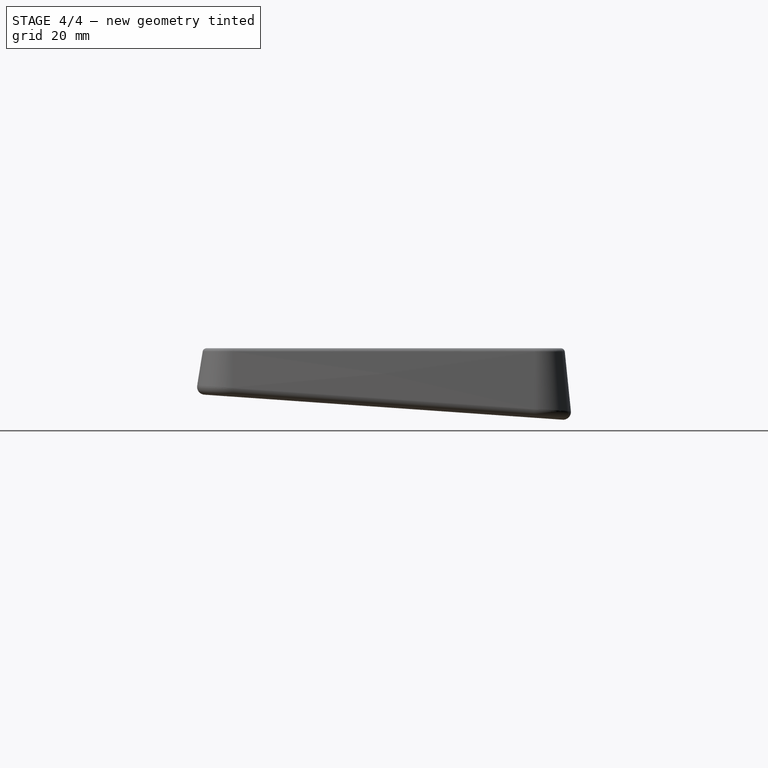
[diagram: stage 4 of 4 — right view after this stage's code; geometry added in this stage tinted green]
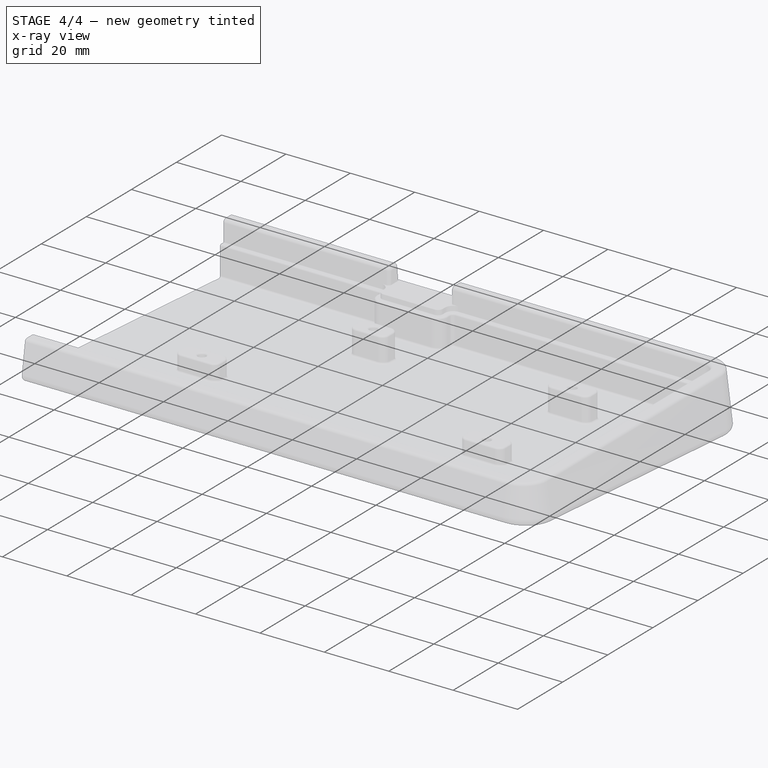
[diagram: stage 4 of 4 — x-ray composite at the iso view; earlier geometry ghosted, this stage's added geometry solid]
FEATURE [Sketcher::SketchObject] Sketch008
  AttachmentOffset = pos=(-84,-1,0) rot=(0,0,1;0rad)
  FullyConstrained = false
  MapMode = 5
  Placement = pos=(-84,-0.858391,2.06002) rot=(-1,0,0;0.069813rad)
  Support = -> [Chamfer]
  sketch-geometry (659):
    g0: BSplineCurve PolesCount=4 KnotsCount=2 Degree=3 IsPeriodic=0
    g1: BSplineCurve PolesCount=4 KnotsCount=2 Degree=3 IsPeriodic=0
    g2: BSplineCurve PolesCount=4 KnotsCount=2 Degree=3 IsPeriodic=0
    g3: BSplineCurve PolesCount=4 KnotsCount=2 Degree=3 IsPeriodic=0
    g4: BSplineCurve PolesCount=4 KnotsCount=2 Degree=3 IsPeriodic=0
    g5: BSplineCurve PolesCount=4 KnotsCount=2 Degree=3 IsPeriodic=0
    g6: BSplineCurve PolesCount=4 KnotsCount=2 Degree=3 IsPeriodic=0
    g7: BSplineCurve PolesCount=4 KnotsCount=2 Degree=3 IsPeriodic=0
    g8: BSplineCurve PolesCount=4 KnotsCount=2 Degree=3 IsPeriodic=0
    g9: BSplineCurve PolesCount=4 KnotsCount=2 Degree=3 IsPeriodic=0
    g10: BSplineCurve PolesCount=4 KnotsCount=2 Degree=3 IsPeriodic=0
    g11: BSplineCurve PolesCount=4 KnotsCount=2 Degree=3 IsPeriodic=0
    g12: BSplineCurve PolesCount=4 KnotsCount=2 Degree=3 IsPeriodic=0
    g13: BSplineCurve PolesCount=4 KnotsCount=2 Degree=3 IsPeriodic=0
    g14: BSplineCurve PolesCount=4 KnotsCount=2 Degree=3 IsPeriodic=0
    g15: BSplineCurve PolesCount=4 KnotsCount=2 Degree=3 IsPeriodic=0
    g16: BSplineCurve PolesCount=4 KnotsCount=2 Degree=3 IsPeriodic=0
    g17: BSplineCurve PolesCount=4 KnotsCount=2 Degree=3 IsPeriodic=0
    g18: BSplineCurve PolesCount=4 KnotsCount=2 Degree=3 IsPeriodic=0
    g19: BSplineCurve PolesCount=4 KnotsCount=2 Degree=3 IsPeriodic=0
    g20: BSplineCurve PolesCount=4 KnotsCount=2 Degree=3 IsPeriodic=0
    g21: BSplineCurve PolesCount=4 KnotsCount=2 Degree=3 IsPeriodic=0
    g22: BSplineCurve PolesCount=4 KnotsCount=2 Degree=3 IsPeriodic=0
    g23: BSplineCurve PolesCount=4 KnotsCount=2 Degree=3 IsPeriodic=0
    g24: BSplineCurve PolesCount=4 KnotsCount=2 Degree=3 IsPeriodic=0
    g25: BSplineCurve PolesCount=4 KnotsCount=2 Degree=3 IsPeriodic=0
    g26: BSplineCurve PolesCount=4 KnotsCount=2 Degree=3 IsPeriodic=0
    g27: BSplineCurve PolesCount=4 KnotsCount=2 Degree=3 IsPeriodic=0
    g28: BSplineCurve PolesCount=4 KnotsCount=2 Degree=3 IsPeriodic=0
    g29: BSplineCurve PolesCount=4 KnotsCount=2 Degree=3 IsPeriodic=0
    g30: BSplineCurve PolesCount=4 KnotsCount=2 Degree=3 IsPeriodic=0
    g31: BSplineCurve PolesCount=4 KnotsCount=2 Degree=3 IsPeriodic=0
    g32: BSplineCurve PolesCount=4 KnotsCount=2 Degree=3 IsPeriodic=0
    g33: BSplineCurve PolesCount=4 KnotsCount=2 Degree=3 IsPeriodic=0
    g34: BSplineCurve PolesCount=4 KnotsCount=2 Degree=3 IsPeriodic=0
    g35: BSplineCurve PolesCount=4 KnotsCount=2 Degree=3 IsPeriodic=0
    g36: BSplineCurve PolesCount=4 KnotsCount=2 Degree=3 IsPeriodic=0
    g37: BSplineCurve PolesCount=4 KnotsCount=2 Degree=3 IsPeriodic=0
    g38: BSplineCurve PolesCount=4 KnotsCount=2 Degree=3 IsPeriodic=0
    g39: BSplineCurve PolesCount=4 KnotsCount=2 Degree=3 IsPeriodic=0
    g40: BSplineCurve PolesCount=4 KnotsCount=2 Degree=3 IsPeriodic=0
    g41: BSplineCurve PolesCount=4 KnotsCount=2 Degree=3 IsPeriodic=0
    g42: BSplineCurve PolesCount=4 KnotsCount=2 Degree=3 IsPeriodic=0
    g43: BSplineCurve PolesCount=4 KnotsCount=2 Degree=3 IsPeriodic=0
    g44: BSplineCurve PolesCount=4 KnotsCount=2 Degree=3 IsPeriodic=0
    g45: BSplineCurve PolesCount=4 KnotsCount=2 Degree=3 IsPeriodic=0
    g46: LineSegment StartX=-35.8459 StartY=-16.2319 StartZ=0 EndX=-36.5043 EndY=-15.8267 EndZ=0
    g47: LineSegment StartX=-36.5043 StartY=-15.8267 StartZ=0 EndX=-38.7324 EndY=-15.9183 EndZ=0
    g48: BSplineCurve PolesCount=4 KnotsCount=2 Degree=3 IsPeriodic=0
    g49: BSplineCurve PolesCount=4 KnotsCount=2 Degree=3 IsPeriodic=0
    g50: BSplineCurve PolesCount=4 KnotsCount=2 Degree=3 IsPeriodic=0
    g51: BSplineCurve PolesCount=4 KnotsCount=2 Degree=3 IsPeriodic=0
    g52: BSplineCurve PolesCount=4 KnotsCount=2 Degree=3 IsPeriodic=0
    g53: BSplineCurve PolesCount=4 KnotsCount=2 Degree=3 IsPeriodic=0
    g54: BSplineCurve PolesCount=4 KnotsCount=2 Degree=3 IsPeriodic=0
    g55: BSplineCurve PolesCount=4 KnotsCount=2 Degree=3 IsPeriodic=0
    g56: BSplineCurve PolesCount=4 KnotsCount=2 Degree=3 IsPeriodic=0
    g57: BSplineCurve PolesCount=4 KnotsCount=2 Degree=3 IsPeriodic=0
    g58: BSplineCurve PolesCount=4 KnotsCount=2 Degree=3 IsPeriodic=0
    g59: BSplineCurve PolesCount=4 KnotsCount=2 Degree=3 IsPeriodic=0
    g60: BSplineCurve PolesCount=4 KnotsCount=2 Degree=3 IsPeriodic=0
    g61: BSplineCurve PolesCount=4 KnotsCount=2 Degree=3 IsPeriodic=0
    g62: BSplineCurve PolesCount=4 KnotsCount=2 Degree=3 IsPeriodic=0
    g63: BSplineCurve PolesCount=4 KnotsCount=2 Degree=3 IsPeriodic=0
    g64: BSplineCurve PolesCount=4 KnotsCount=2 Degree=3 IsPeriodic=0
    g65: BSplineCurve PolesCount=4 KnotsCount=2 Degree=3 IsPeriodic=0
    g66: BSplineCurve PolesCount=4 KnotsCount=2 Degree=3 IsPeriodic=0
    g67: BSplineCurve PolesCount=4 KnotsCount=2 Degree=3 IsPeriodic=0
    g68: BSplineCurve PolesCount=4 KnotsCount=2 Degree=3 IsPeriodic=0
    g69: BSplineCurve PolesCount=4 KnotsCount=2 Degree=3 IsPeriodic=0
    g70: BSplineCurve PolesCount=4 KnotsCount=2 Degree=3 IsPeriodic=0
    g71: BSplineCurve PolesCount=4 KnotsCount=2 Degree=3 IsPeriodic=0
    g72: BSplineCurve PolesCount=4 KnotsCount=2 Degree=3 IsPeriodic=0
    g73: BSplineCurve PolesCount=4 KnotsCount=2 Degree=3 IsPeriodic=0
    g74: BSplineCurve PolesCount=4 KnotsCount=2 Degree=3 IsPeriodic=0
    g75: BSplineCurve PolesCount=4 KnotsCount=2 Degree=3 IsPeriodic=0
    g76: BSplineCurve PolesCount=4 KnotsCount=2 Degree=3 IsPeriodic=0
    g77: BSplineCurve PolesCount=4 KnotsCount=2 Degree=3 IsPeriodic=0
    g78: BSplineCurve PolesCount=4 KnotsCount=2 Degree=3 IsPeriodic=0
    g79: BSplineCurve PolesCount=4 KnotsCount=2 Degree=3 IsPeriodic=0
    g80: BSplineCurve PolesCount=4 KnotsCount=2 Degree=3 IsPeriodic=0
    g81: BSplineCurve PolesCount=4 KnotsCount=2 Degree=3 IsPeriodic=0
    g82: BSplineCurve PolesCount=4 KnotsCount=2 Degree=3 IsPeriodic=0
    g83: BSplineCurve PolesCount=4 KnotsCount=2 Degree=3 IsPeriodic=0
    g84: BSplineCurve PolesCount=4 KnotsCount=2 Degree=3 IsPeriodic=0
    g85: BSplineCurve PolesCount=4 KnotsCount=2 Degree=3 IsPeriodic=0
    g86: BSplineCurve PolesCount=4 KnotsCount=2 Degree=3 IsPeriodic=0
    g87: BSplineCurve PolesCount=4 KnotsCount=2 Degree=3 IsPeriodic=0
    g88: BSplineCurve PolesCount=4 KnotsCount=2 Degree=3 IsPeriodic=0
    g89: BSplineCurve PolesCount=4 KnotsCount=2 Degree=3 IsPeriodic=0
    g90: BSplineCurve PolesCount=4 KnotsCount=2 Degree=3 IsPeriodic=0
    g91: BSplineCurve PolesCount=4 KnotsCount=2 Degree=3 IsPeriodic=0
    g92: BSplineCurve PolesCount=4 KnotsCount=2 Degree=3 IsPeriodic=0
    g93: LineSegment StartX=40.0472 StartY=14.5474 StartZ=0 EndX=40.7767 EndY=14.1904 EndZ=0
    g94: LineSegment StartX=40.7767 StartY=14.1904 StartZ=0 EndX=42.6912 EndY=14.4088 EndZ=0
    g95: BSplineCurve PolesCount=4 KnotsCount=2 Degree=3 IsPeriodic=0
    g96: BSplineCurve PolesCount=4 KnotsCount=2 Degree=3 IsPeriodic=0
    g97: BSplineCurve PolesCount=4 KnotsCount=2 Degree=3 IsPeriodic=0
    g98: BSplineCurve PolesCount=4 KnotsCount=2 Degree=3 IsPeriodic=0
    g99: BSplineCurve PolesCount=4 KnotsCount=2 Degree=3 IsPeriodic=0
    g100: BSplineCurve PolesCount=4 KnotsCount=2 Degree=3 IsPeriodic=0
    g101: BSplineCurve PolesCount=4 KnotsCount=2 Degree=3 IsPeriodic=0
    g102: BSplineCurve PolesCount=4 KnotsCount=2 Degree=3 IsPeriodic=0
    g103: BSplineCurve PolesCount=4 KnotsCount=2 Degree=3 IsPeriodic=0
    g104: BSplineCurve PolesCount=4 KnotsCount=2 Degree=3 IsPeriodic=0
    g105: BSplineCurve PolesCount=4 KnotsCount=2 Degree=3 IsPeriodic=0
    g106: BSplineCurve PolesCount=4 KnotsCount=2 Degree=3 IsPeriodic=0
    g107: BSplineCurve PolesCount=4 KnotsCount=2 Degree=3 IsPeriodic=0
    g108: BSplineCurve PolesCount=4 KnotsCount=2 Degree=3 IsPeriodic=0
    g109: BSplineCurve PolesCount=4 KnotsCount=2 Degree=3 IsPeriodic=0
    g110: BSplineCurve PolesCount=4 KnotsCount=2 Degree=3 IsPeriodic=0
    g111: BSplineCurve PolesCount=4 KnotsCount=2 Degree=3 IsPeriodic=0
    g112: BSplineCurve PolesCount=4 KnotsCount=2 Degree=3 IsPeriodic=0
    g113: BSplineCurve PolesCount=4 KnotsCount=2 Degree=3 IsPeriodic=0
    g114: BSplineCurve PolesCount=4 KnotsCount=2 Degree=3 IsPeriodic=0
    g115: BSplineCurve PolesCount=4 KnotsCount=2 Degree=3 IsPeriodic=0
    g116: BSplineCurve PolesCount=4 KnotsCount=2 Degree=3 IsPeriodic=0
    g117: BSplineCurve PolesCount=4 KnotsCount=2 Degree=3 IsPeriodic=0
    g118: BSplineCurve PolesCount=4 KnotsCount=2 Degree=3 IsPeriodic=0
    g119: BSplineCurve PolesCount=4 KnotsCount=2 Degree=3 IsPeriodic=0
    g120: BSplineCurve PolesCount=4 KnotsCount=2 Degree=3 IsPeriodic=0
    g121: BSplineCurve PolesCount=4 KnotsCount=2 Degree=3 IsPeriodic=0
    g122: BSplineCurve PolesCount=4 KnotsCount=2 Degree=3 IsPeriodic=0
    g123: BSplineCurve PolesCount=4 KnotsCount=2 Degree=3 IsPeriodic=0
    g124: BSplineCurve PolesCount=4 KnotsCount=2 Degree=3 IsPeriodic=0
    g125: BSplineCurve PolesCount=4 KnotsCount=2 Degree=3 IsPeriodic=0
    g126: BSplineCurve PolesCount=4 KnotsCount=2 Degree=3 IsPeriodic=0
    g127: BSplineCurve PolesCount=4 KnotsCount=2 Degree=3 IsPeriodic=0
    g128: BSplineCurve PolesCount=4 KnotsCount=2 Degree=3 IsPeriodic=0
    g129: BSplineCurve PolesCount=4 KnotsCount=2 Degree=3 IsPeriodic=0
    g130: BSplineCurve PolesCount=4 KnotsCount=2 Degree=3 IsPeriodic=0
    g131: BSplineCurve PolesCount=4 KnotsCount=2 Degree=3 IsPeriodic=0
    g132: BSplineCurve PolesCount=4 KnotsCount=2 Degree=3 IsPeriodic=0
    g133: BSplineCurve PolesCount=4 KnotsCount=2 Degree=3 IsPeriodic=0
    g134: BSplineCurve PolesCount=4 KnotsCount=2 Degree=3 IsPeriodic=0
    g135: BSplineCurve PolesCount=4 KnotsCount=2 Degree=3 IsPeriodic=0
    g136: BSplineCurve PolesCount=4 KnotsCount=2 Degree=3 IsPeriodic=0
    g137: BSplineCurve PolesCount=4 KnotsCount=2 Degree=3 IsPeriodic=0
    g138: BSplineCurve PolesCount=4 KnotsCount=2 Degree=3 IsPeriodic=0
    g139: BSplineCurve PolesCount=4 KnotsCount=2 Degree=3 IsPeriodic=0
    g140: BSplineCurve PolesCount=4 KnotsCount=2 Degree=3 IsPeriodic=0
    g141: BSplineCurve PolesCount=4 KnotsCount=2 Degree=3 IsPeriodic=0
    g142: BSplineCurve PolesCount=4 KnotsCount=2 Degree=3 IsPeriodic=0
    g143: BSplineCurve PolesCount=4 KnotsCount=2 Degree=3 IsPeriodic=0
    g144: BSplineCurve PolesCount=4 KnotsCount=2 Degree=3 IsPeriodic=0
    g145: BSplineCurve PolesCount=4 KnotsCount=2 Degree=3 IsPeriodic=0
    g146: BSplineCurve PolesCount=4 KnotsCount=2 Degree=3 IsPeriodic=0
    g147: BSplineCurve PolesCount=4 KnotsCount=2 Degree=3 IsPeriodic=0
    g148: BSplineCurve PolesCount=4 KnotsCount=2 Degree=3 IsPeriodic=0
    g149: BSplineCurve PolesCount=4 KnotsCount=2 Degree=3 IsPeriodic=0
    g150: BSplineCurve PolesCount=4 KnotsCount=2 Degree=3 IsPeriodic=0
    g151: BSplineCurve PolesCount=4 KnotsCount=2 Degree=3 IsPeriodic=0
    g152: BSplineCurve PolesCount=4 KnotsCount=2 Degree=3 IsPeriodic=0
    g153: BSplineCurve PolesCount=4 KnotsCount=2 Degree=3 IsPeriodic=0
    g154: BSplineCurve PolesCount=4 KnotsCount=2 Degree=3 IsPeriodic=0
    g155: BSplineCurve PolesCount=4 KnotsCount=2 Degree=3 IsPeriodic=0
    g156: BSplineCurve PolesCount=4 KnotsCount=2 Degree=3 IsPeriodic=0
    g157: BSplineCurve PolesCount=4 KnotsCount=2 Degree=3 IsPeriodic=0
    g158: BSplineCurve PolesCount=4 KnotsCount=2 Degree=3 IsPeriodic=0
    g159: BSplineCurve PolesCount=4 KnotsCount=2 Degree=3 IsPeriodic=0
    g160: BSplineCurve PolesCount=4 KnotsCount=2 Degree=3 IsPeriodic=0
    g161: BSplineCurve PolesCount=4 KnotsCount=2 Degree=3 IsPeriodic=0
    g162: BSplineCurve PolesCount=4 KnotsCount=2 Degree=3 IsPeriodic=0
    g163: BSplineCurve PolesCount=4 KnotsCount=2 Degree=3 IsPeriodic=0
    g164: BSplineCurve PolesCount=4 KnotsCount=2 Degree=3 IsPeriodic=0
    g165: BSplineCurve PolesCount=4 KnotsCount=2 Degree=3 IsPeriodic=0
    g166: BSplineCurve PolesCount=4 KnotsCount=2 Degree=3 IsPeriodic=0
    g167: BSplineCurve PolesCount=4 KnotsCount=2 Degree=3 IsPeriodic=0
    g168: BSplineCurve PolesCount=4 KnotsCount=2 Degree=3 IsPeriodic=0
    g169: BSplineCurve PolesCount=4 KnotsCount=2 Degree=3 IsPeriodic=0
    g170: BSplineCurve PolesCount=4 KnotsCount=2 Degree=3 IsPeriodic=0
    g171: BSplineCurve PolesCount=4 KnotsCount=2 Degree=3 IsPeriodic=0
    g172: BSplineCurve PolesCount=4 KnotsCount=2 Degree=3 IsPeriodic=0
    g173: BSplineCurve PolesCount=4 KnotsCount=2 Degree=3 IsPeriodic=0
    g174: BSplineCurve PolesCount=4 KnotsCount=2 Degree=3 IsPeriodic=0
    g175: BSplineCurve PolesCount=4 KnotsCount=2 Degree=3 IsPeriodic=0
    g176: BSplineCurve PolesCount=4 KnotsCount=2 Degree=3 IsPeriodic=0
    g177: LineSegment StartX=-28.7811 StartY=-1.76462 StartZ=0 EndX=-29.1027 EndY=-1.06165 EndZ=0
    g178: LineSegment StartX=-29.1027 StartY=-1.06165 StartZ=0 EndX=-28.7762 EndY=-0.411713 EndZ=0
    g179: BSplineCurve PolesCount=4 KnotsCount=2 Degree=3 IsPeriodic=0
    g180: BSplineCurve PolesCount=4 KnotsCount=2 Degree=3 IsPeriodic=0
    g181: BSplineCurve PolesCount=4 KnotsCount=2 Degree=3 IsPeriodic=0
    g182: BSplineCurve PolesCount=4 KnotsCount=2 Degree=3 IsPeriodic=0
    g183: BSplineCurve PolesCount=4 KnotsCount=2 Degree=3 IsPeriodic=0
    g184: BSplineCurve PolesCount=4 KnotsCount=2 Degree=3 IsPeriodic=0
    g185: BSplineCurve PolesCount=4 KnotsCount=2 Degree=3 IsPeriodic=0
    g186: BSplineCurve PolesCount=4 KnotsCount=2 Degree=3 IsPeriodic=0
    g187: BSplineCurve PolesCount=4 KnotsCount=2 Degree=3 IsPeriodic=0
    g188: BSplineCurve PolesCount=4 KnotsCount=2 Degree=3 IsPeriodic=0
    g189: BSplineCurve PolesCount=4 KnotsCount=2 Degree=3 IsPeriodic=0
    g190: BSplineCurve PolesCount=4 KnotsCount=2 Degree=3 IsPeriodic=0
    g191: BSplineCurve PolesCount=4 KnotsCount=2 Degree=3 IsPeriodic=0
    g192: BSplineCurve PolesCount=4 KnotsCount=2 Degree=3 IsPeriodic=0
    g193: BSplineCurve PolesCount=4 KnotsCount=2 Degree=3 IsPeriodic=0
    g194: BSplineCurve PolesCount=4 KnotsCount=2 Degree=3 IsPeriodic=0
    g195: BSplineCurve PolesCount=4 KnotsCount=2 Degree=3 IsPeriodic=0
    g196: BSplineCurve PolesCount=4 KnotsCount=2 Degree=3 IsPeriodic=0
    g197: BSplineCurve PolesCount=4 KnotsCount=2 Degree=3 IsPeriodic=0
    g198: BSplineCurve PolesCount=4 KnotsCount=2 Degree=3 IsPeriodic=0
    g199: BSplineCurve PolesCount=4 KnotsCount=2 Degree=3 IsPeriodic=0
    g200: BSplineCurve PolesCount=4 KnotsCount=2 Degree=3 IsPeriodic=0
    g201: BSplineCurve PolesCount=4 KnotsCount=2 Degree=3 IsPeriodic=0
    g202: BSplineCurve PolesCount=4 KnotsCount=2 Degree=3 IsPeriodic=0
    g203: BSplineCurve PolesCount=4 KnotsCount=2 Degree=3 IsPeriodic=0
    g204: BSplineCurve PolesCount=4 KnotsCount=2 Degree=3 IsPeriodic=0
    g205: LineSegment StartX=-30.5472 StartY=-8.60208 StartZ=0 EndX=-30.5911 EndY=-9.05275 EndZ=0
    g206: LineSegment StartX=-30.5911 StartY=-9.05275 StartZ=0 EndX=-30.8817 EndY=-8.47741 EndZ=0
    g207: BSplineCurve PolesCount=4 KnotsCount=2 Degree=3 IsPeriodic=0
    g208: BSplineCurve PolesCount=4 KnotsCount=2 Degree=3 IsPeriodic=0
    g209: BSplineCurve PolesCount=4 KnotsCount=2 Degree=3 IsPeriodic=0
    g210: BSplineCurve PolesCount=4 KnotsCount=2 Degree=3 IsPeriodic=0
    g211: BSplineCurve PolesCount=4 KnotsCount=2 Degree=3 IsPeriodic=0
    g212: BSplineCurve PolesCount=4 KnotsCount=2 Degree=3 IsPeriodic=0
    g213: BSplineCurve PolesCount=4 KnotsCount=2 Degree=3 IsPeriodic=0
    g214: LineSegment StartX=-10.8393 StartY=-4.74904 StartZ=0 EndX=-11.9627 EndY=-4.69176 EndZ=0
    g215: LineSegment StartX=-11.9627 StartY=-4.69176 StartZ=0 EndX=-11.5664 EndY=-3.82558 EndZ=0
    g216: BSplineCurve PolesCount=4 KnotsCount=2 Degree=3 IsPeriodic=0
    g217: BSplineCurve PolesCount=4 KnotsCount=2 Degree=3 IsPeriodic=0
    g218: BSplineCurve PolesCount=4 KnotsCount=2 Degree=3 IsPeriodic=0
    g219: BSplineCurve PolesCount=4 KnotsCount=2 Degree=3 IsPeriodic=0
    g220: BSplineCurve PolesCount=4 KnotsCount=2 Degree=3 IsPeriodic=0
    g221: BSplineCurve PolesCount=4 KnotsCount=2 Degree=3 IsPeriodic=0
    g222: BSplineCurve PolesCount=4 KnotsCount=2 Degree=3 IsPeriodic=0
    g223: BSplineCurve PolesCount=4 KnotsCount=2 Degree=3 IsPeriodic=0
    g224: BSplineCurve PolesCount=4 KnotsCount=2 Degree=3 IsPeriodic=0
    g225: LineSegment StartX=-5.52899 StartY=0.220941 StartZ=0 EndX=-5.49073 EndY=0.670697 EndZ=0
    g226: LineSegment StartX=-5.49073 StartY=0.670697 StartZ=0 EndX=-6.76062 EndY=0.882872 EndZ=0
    g227: BSplineCurve PolesCount=4 KnotsCount=2 Degree=3 IsPeriodic=0
    g228: BSplineCurve PolesCount=4 KnotsCount=2 Degree=3 IsPeriodic=0
    g229: BSplineCurve PolesCount=4 KnotsCount=2 Degree=3 IsPeriodic=0
    g230: BSplineCurve PolesCount=4 KnotsCount=2 Degree=3 IsPeriodic=0
    g231: BSplineCurve PolesCount=4 KnotsCount=2 Degree=3 IsPeriodic=0
    g232: BSplineCurve PolesCount=4 KnotsCount=2 Degree=3 IsPeriodic=0
    g233: BSplineCurve PolesCount=4 KnotsCount=2 Degree=3 IsPeriodic=0
    g234: BSplineCurve PolesCount=4 KnotsCount=2 Degree=3 IsPeriodic=0
    g235: BSplineCurve PolesCount=4 KnotsCount=2 Degree=3 IsPeriodic=0
    g236: BSplineCurve PolesCount=4 KnotsCount=2 Degree=3 IsPeriodic=0
    g237: BSplineCurve PolesCount=4 KnotsCount=2 Degree=3 IsPeriodic=0
    g238: BSplineCurve PolesCount=4 KnotsCount=2 Degree=3 IsPeriodic=0
    g239: BSplineCurve PolesCount=4 KnotsCount=2 Degree=3 IsPeriodic=0
    g240: BSplineCurve PolesCount=4 KnotsCount=2 Degree=3 IsPeriodic=0
    g241: BSplineCurve PolesCount=4 KnotsCount=2 Degree=3 IsPeriodic=0
    g242: BSplineCurve PolesCount=4 KnotsCount=2 Degree=3 IsPeriodic=0
    g243: LineSegment StartX=-8.35416 StartY=-0.774842 StartZ=0 EndX=-8.74262 EndY=-1.61411 EndZ=0
    g244: LineSegment StartX=-8.74262 StartY=-1.61411 StartZ=0 EndX=-9.35891 EndY=-1.53557 EndZ=0
    g245: BSplineCurve PolesCount=4 KnotsCount=2 Degree=3 IsPeriodic=0
    g246: BSplineCurve PolesCount=4 KnotsCount=2 Degree=3 IsPeriodic=0
    g247: BSplineCurve PolesCount=4 KnotsCount=2 Degree=3 IsPeriodic=0
    g248: BSplineCurve PolesCount=4 KnotsCount=2 Degree=3 IsPeriodic=0
    g249: BSplineCurve PolesCount=4 KnotsCount=2 Degree=3 IsPeriodic=0
    g250: BSplineCurve PolesCount=4 KnotsCount=2 Degree=3 IsPeriodic=0
    g251: BSplineCurve PolesCount=4 KnotsCount=2 Degree=3 IsPeriodic=0
    g252: BSplineCurve PolesCount=4 KnotsCount=2 Degree=3 IsPeriodic=0
    g253: BSplineCurve PolesCount=4 KnotsCount=2 Degree=3 IsPeriodic=0
    g254: BSplineCurve PolesCount=4 KnotsCount=2 Degree=3 IsPeriodic=0
    g255: BSplineCurve PolesCount=4 KnotsCount=2 Degree=3 IsPeriodic=0
    g256: BSplineCurve PolesCount=4 KnotsCount=2 Degree=3 IsPeriodic=0
    g257: BSplineCurve PolesCount=4 KnotsCount=2 Degree=3 IsPeriodic=0
    g258: BSplineCurve PolesCount=4 KnotsCount=2 Degree=3 IsPeriodic=0
    g259: BSplineCurve PolesCount=4 KnotsCount=2 Degree=3 IsPeriodic=0
    g260: BSplineCurve PolesCount=4 KnotsCount=2 Degree=3 IsPeriodic=0
    g261: BSplineCurve PolesCount=4 KnotsCount=2 Degree=3 IsPeriodic=0
    g262: BSplineCurve PolesCount=4 KnotsCount=2 Degree=3 IsPeriodic=0
    g263: BSplineCurve PolesCount=4 KnotsCount=2 Degree=3 IsPeriodic=0
    g264: BSplineCurve PolesCount=4 KnotsCount=2 Degree=3 IsPeriodic=0
    g265: BSplineCurve PolesCount=4 KnotsCount=2 Degree=3 IsPeriodic=0
    g266: BSplineCurve PolesCount=4 KnotsCount=2 Degree=3 IsPeriodic=0
    g267: BSplineCurve PolesCount=4 KnotsCount=2 Degree=3 IsPeriodic=0
    g268: BSplineCurve PolesCount=4 KnotsCount=2 Degree=3 IsPeriodic=0
    g269: BSplineCurve PolesCount=4 KnotsCount=2 Degree=3 IsPeriodic=0
    g270: BSplineCurve PolesCount=4 KnotsCount=2 Degree=3 IsPeriodic=0
    g271: BSplineCurve PolesCount=4 KnotsCount=2 Degree=3 IsPeriodic=0
    g272: BSplineCurve PolesCount=4 KnotsCount=2 Degree=3 IsPeriodic=0
    g273: BSplineCurve PolesCount=4 KnotsCount=2 Degree=3 IsPeriodic=0
    g274: BSplineCurve PolesCount=4 KnotsCount=2 Degree=3 IsPeriodic=0
    g275: BSplineCurve PolesCount=4 KnotsCount=2 Degree=3 IsPeriodic=0
    g276: BSplineCurve PolesCount=4 KnotsCount=2 Degree=3 IsPeriodic=0
    g277: BSplineCurve PolesCount=4 KnotsCount=2 Degree=3 IsPeriodic=0
    g278: BSplineCurve PolesCount=4 KnotsCount=2 Degree=3 IsPeriodic=0
    g279: BSplineCurve PolesCount=4 KnotsCount=2 Degree=3 IsPeriodic=0
    g280: BSplineCurve PolesCount=4 KnotsCount=2 Degree=3 IsPeriodic=0
    g281: BSplineCurve PolesCount=4 KnotsCount=2 Degree=3 IsPeriodic=0
    g282: BSplineCurve PolesCount=4 KnotsCount=2 Degree=3 IsPeriodic=0
    g283: BSplineCurve PolesCount=4 KnotsCount=2 Degree=3 IsPeriodic=0
    g284: LineSegment StartX=-23.769 StartY=-8.88085 StartZ=0 EndX=-23.3287 EndY=-7.80144 EndZ=0
    g285: LineSegment StartX=-23.3287 StartY=-7.80144 StartZ=0 EndX=-21.4798 EndY=-6.90375 EndZ=0
    g286: BSplineCurve PolesCount=4 KnotsCount=2 Degree=3 IsPeriodic=0
    g287: BSplineCurve PolesCount=4 KnotsCount=2 Degree=3 IsPeriodic=0
    g288: BSplineCurve PolesCount=4 KnotsCount=2 Degree=3 IsPeriodic=0
    g289: LineSegment StartX=-24.2388 StartY=-6.48243 StartZ=0 EndX=-23.777 EndY=-7.80149 EndZ=0
    g290: LineSegment StartX=-23.777 StartY=-7.80149 StartZ=0 EndX=-24.1095 EndY=-8.55676 EndZ=0
    g291: BSplineCurve PolesCount=4 KnotsCount=2 Degree=3 IsPeriodic=0
    g292: BSplineCurve PolesCount=4 KnotsCount=2 Degree=3 IsPeriodic=0
    g293: BSplineCurve PolesCount=4 KnotsCount=2 Degree=3 IsPeriodic=0
    g294: BSplineCurve PolesCount=4 KnotsCount=2 Degree=3 IsPeriodic=0
    g295: BSplineCurve PolesCount=4 KnotsCount=2 Degree=3 IsPeriodic=0
    g296: BSplineCurve PolesCount=4 KnotsCount=2 Degree=3 IsPeriodic=0
    g297: BSplineCurve PolesCount=4 KnotsCount=2 Degree=3 IsPeriodic=0
    g298: BSplineCurve PolesCount=4 KnotsCount=2 Degree=3 IsPeriodic=0
    g299: BSplineCurve PolesCount=4 KnotsCount=2 Degree=3 IsPeriodic=0
    g300: BSplineCurve PolesCount=4 KnotsCount=2 Degree=3 IsPeriodic=0
    g301: BSplineCurve PolesCount=4 KnotsCount=2 Degree=3 IsPeriodic=0
    g302: BSplineCurve PolesCount=4 KnotsCount=2 Degree=3 IsPeriodic=0
    g303: BSplineCurve PolesCount=4 KnotsCount=2 Degree=3 IsPeriodic=0
    g304: BSplineCurve PolesCount=4 KnotsCount=2 Degree=3 IsPeriodic=0
    g305: BSplineCurve PolesCount=4 KnotsCount=2 Degree=3 IsPeriodic=0
    g306: BSplineCurve PolesCount=4 KnotsCount=2 Degree=3 IsPeriodic=0
    g307: BSplineCurve PolesCount=4 KnotsCount=2 Degree=3 IsPeriodic=0
    g308: BSplineCurve PolesCount=4 KnotsCount=2 Degree=3 IsPeriodic=0
    g309: BSplineCurve PolesCount=4 KnotsCount=2 Degree=3 IsPeriodic=0
    g310: BSplineCurve PolesCount=4 KnotsCount=2 Degree=3 IsPeriodic=0
    g311: BSplineCurve PolesCount=4 KnotsCount=2 Degree=3 IsPeriodic=0
    g312: BSplineCurve PolesCount=4 KnotsCount=2 Degree=3 IsPeriodic=0
    g313: BSplineCurve PolesCount=4 KnotsCount=2 Degree=3 IsPeriodic=0
    g314: BSplineCurve PolesCount=4 KnotsCount=2 Degree=3 IsPeriodic=0
    g315: BSplineCurve PolesCount=4 KnotsCount=2 Degree=3 IsPeriodic=0
    g316: BSplineCurve PolesCount=4 KnotsCount=2 Degree=3 IsPeriodic=0
    g317: BSplineCurve PolesCount=4 KnotsCount=2 Degree=3 IsPeriodic=0
    g318: BSplineCurve PolesCount=4 KnotsCount=2 Degree=3 IsPeriodic=0
    g319: BSplineCurve PolesCount=4 KnotsCount=2 Degree=3 IsPeriodic=0
    g320: BSplineCurve PolesCount=4 KnotsCount=2 Degree=3 IsPeriodic=0
    g321: BSplineCurve PolesCount=4 KnotsCount=2 Degree=3 IsPeriodic=0
    g322: BSplineCurve PolesCount=4 KnotsCount=2 Degree=3 IsPeriodic=0
    g323: BSplineCurve PolesCount=4 KnotsCount=2 Degree=3 IsPeriodic=0
    g324: BSplineCurve PolesCount=4 KnotsCount=2 Degree=3 IsPeriodic=0
    g325: BSplineCurve PolesCount=4 KnotsCount=2 Degree=3 IsPeriodic=0
    g326: BSplineCurve PolesCount=4 KnotsCount=2 Degree=3 IsPeriodic=0
    g327: BSplineCurve PolesCount=4 KnotsCount=2 Degree=3 IsPeriodic=0
    g328: BSplineCurve PolesCount=4 KnotsCount=2 Degree=3 IsPeriodic=0
    g329: BSplineCurve PolesCount=4 KnotsCount=2 Degree=3 IsPeriodic=0
    g330: BSplineCurve PolesCount=4 KnotsCount=2 Degree=3 IsPeriodic=0
    g331: BSplineCurve PolesCount=4 KnotsCount=2 Degree=3 IsPeriodic=0
    g332: BSplineCurve PolesCount=4 KnotsCount=2 Degree=3 IsPeriodic=0
    g333: BSplineCurve PolesCount=4 KnotsCount=2 Degree=3 IsPeriodic=0
    g334: BSplineCurve PolesCount=4 KnotsCount=2 Degree=3 IsPeriodic=0
    g335: BSplineCurve PolesCount=4 KnotsCount=2 Degree=3 IsPeriodic=0
    g336: BSplineCurve PolesCount=4 KnotsCount=2 Degree=3 IsPeriodic=0
    g337: BSplineCurve PolesCount=4 KnotsCount=2 Degree=3 IsPeriodic=0
    g338: BSplineCurve PolesCount=4 KnotsCount=2 Degree=3 IsPeriodic=0
    g339: BSplineCurve PolesCount=4 KnotsCount=2 Degree=3 IsPeriodic=0
    g340: BSplineCurve PolesCount=4 KnotsCount=2 Degree=3 IsPeriodic=0
    g341: BSplineCurve PolesCount=4 KnotsCount=2 Degree=3 IsPeriodic=0
    g342: BSplineCurve PolesCount=4 KnotsCount=2 Degree=3 IsPeriodic=0
    g343: BSplineCurve PolesCount=4 KnotsCount=2 Degree=3 IsPeriodic=0
    g344: BSplineCurve PolesCount=4 KnotsCount=2 Degree=3 IsPeriodic=0
    g345: BSplineCurve PolesCount=4 KnotsCount=2 Degree=3 IsPeriodic=0
    g346: BSplineCurve PolesCount=4 KnotsCount=2 Degree=3 IsPeriodic=0
    g347: BSplineCurve PolesCount=4 KnotsCount=2 Degree=3 IsPeriodic=0
    g348: BSplineCurve PolesCount=4 KnotsCount=2 Degree=3 IsPeriodic=0
    g349: BSplineCurve PolesCount=4 KnotsCount=2 Degree=3 IsPeriodic=0
    g350: BSplineCurve PolesCount=4 KnotsCount=2 Degree=3 IsPeriodic=0
    g351: BSplineCurve PolesCount=4 KnotsCount=2 Degree=3 IsPeriodic=0
    g352: BSplineCurve PolesCount=4 KnotsCount=2 Degree=3 IsPeriodic=0
    g353: BSplineCurve PolesCount=4 KnotsCount=2 Degree=3 IsPeriodic=0
    g354: BSplineCurve PolesCount=4 KnotsCount=2 Degree=3 IsPeriodic=0
    g355: BSplineCurve PolesCount=4 KnotsCount=2 Degree=3 IsPeriodic=0
    g356: BSplineCurve PolesCount=4 KnotsCount=2 Degree=3 IsPeriodic=0
    g357: BSplineCurve PolesCount=4 KnotsCount=2 Degree=3 IsPeriodic=0
    g358: BSplineCurve PolesCount=4 KnotsCount=2 Degree=3 IsPeriodic=0
    g359: BSplineCurve PolesCount=4 KnotsCount=2 Degree=3 IsPeriodic=0
    g360: BSplineCurve PolesCount=4 KnotsCount=2 Degree=3 IsPeriodic=0
    g361: BSplineCurve PolesCount=4 KnotsCount=2 Degree=3 IsPeriodic=0
    g362: BSplineCurve PolesCount=4 KnotsCount=2 Degree=3 IsPeriodic=0
    g363: BSplineCurve PolesCount=4 KnotsCount=2 Degree=3 IsPeriodic=0
    g364: BSplineCurve PolesCount=4 KnotsCount=2 Degree=3 IsPeriodic=0
    g365: BSplineCurve PolesCount=4 KnotsCount=2 Degree=3 IsPeriodic=0
    g366: BSplineCurve PolesCount=4 KnotsCount=2 Degree=3 IsPeriodic=0
    g367: BSplineCurve PolesCount=4 KnotsCount=2 Degree=3 IsPeriodic=0
    g368: BSplineCurve PolesCount=4 KnotsCount=2 Degree=3 IsPeriodic=0
    g369: BSplineCurve PolesCount=4 KnotsCount=2 Degree=3 IsPeriodic=0
    g370: BSplineCurve PolesCount=4 KnotsCount=2 Degree=3 IsPeriodic=0
    g371: BSplineCurve PolesCount=4 KnotsCount=2 Degree=3 IsPeriodic=0
    g372: BSplineCurve PolesCount=4 KnotsCount=2 Degree=3 IsPeriodic=0
    g373: BSplineCurve PolesCount=4 KnotsCount=2 Degree=3 IsPeriodic=0
    g374: BSplineCurve PolesCount=4 KnotsCount=2 Degree=3 IsPeriodic=0
    g375: BSplineCurve PolesCount=4 KnotsCount=2 Degree=3 IsPeriodic=0
    g376: BSplineCurve PolesCount=4 KnotsCount=2 Degree=3 IsPeriodic=0
    g377: BSplineCurve PolesCount=4 KnotsCount=2 Degree=3 IsPeriodic=0
    g378: BSplineCurve PolesCount=4 KnotsCount=2 Degree=3 IsPeriodic=0
    g379: BSplineCurve PolesCount=4 KnotsCount=2 Degree=3 IsPeriodic=0
    g380: BSplineCurve PolesCount=4 KnotsCount=2 Degree=3 IsPeriodic=0
    g381: BSplineCurve PolesCount=4 KnotsCount=2 Degree=3 IsPeriodic=0
    g382: BSplineCurve PolesCount=4 KnotsCount=2 Degree=3 IsPeriodic=0
    g383: BSplineCurve PolesCount=4 KnotsCount=2 Degree=3 IsPeriodic=0
    g384: BSplineCurve PolesCount=4 KnotsCount=2 Degree=3 IsPeriodic=0
    g385: BSplineCurve PolesCount=4 KnotsCount=2 Degree=3 IsPeriodic=0
    g386: BSplineCurve PolesCount=4 KnotsCount=2 Degree=3 IsPeriodic=0
    g387: BSplineCurve PolesCount=4 KnotsCount=2 Degree=3 IsPeriodic=0
    g388: BSplineCurve PolesCount=4 KnotsCount=2 Degree=3 IsPeriodic=0
    g389: BSplineCurve PolesCount=4 KnotsCount=2 Degree=3 IsPeriodic=0
    g390: BSplineCurve PolesCount=4 KnotsCount=2 Degree=3 IsPeriodic=0
    g391: BSplineCurve PolesCount=4 KnotsCount=2 Degree=3 IsPeriodic=0
    g392: BSplineCurve PolesCount=4 KnotsCount=2 Degree=3 IsPeriodic=0
    g393: BSplineCurve PolesCount=4 KnotsCount=2 Degree=3 IsPeriodic=0
    g394: BSplineCurve PolesCount=4 KnotsCount=2 Degree=3 IsPeriodic=0
    g395: BSplineCurve PolesCount=4 KnotsCount=2 Degree=3 IsPeriodic=0
    g396: BSplineCurve PolesCount=4 KnotsCount=2 Degree=3 IsPeriodic=0
    g397: BSplineCurve PolesCount=4 KnotsCount=2 Degree=3 IsPeriodic=0
    g398: LineSegment StartX=17.7509 StartY=0.161083 StartZ=0 EndX=20.974 EndY=0.253879 EndZ=0
    g399: LineSegment StartX=20.974 StartY=0.253879 StartZ=0 EndX=21.5107 EndY=0.832667 EndZ=0
    ... +259 more geometry lines
  constraints (659):
    c: Coincident(g12,g13)
    c: Coincident(g11,g12)
    c: Coincident(g10,g11)
    c: Coincident(g9,g10)
    c: Coincident(g8,g9)
    c: Coincident(g13,g14)
    c: Coincident(g7,g8)
    c: Coincident(g6,g7)
    c: Coincident(g5,g6)
    c: Coincident(g4,g5)
    c: Coincident(g3,g4)
    c: Coincident(g14,g15)
    c: Coincident(g3,g47)
    c: Coincident(g15,g16)
    c: Coincident(g101,g102)
    c: Coincident(g100,g101)
    c: Coincident(g102,g103)
    c: Coincident(g103,g104)
    c: Coincident(g104,g105)
    c: Coincident(g46,g47)
    c: Coincident(g99,g100)
    c: Coincident(g98,g99)
    c: Coincident(g97,g98)
    c: Coincident(g189,g190)
    c: Coincident(g188,g189)
    c: Coincident(g2,g46)
    c: Coincident(g190,g191)
    c: Coincident(g95,g105)
    c: Coincident(g96,g97)
    c: Coincident(g191,g192)
    c: Coincident(g95,g96)
    c: Coincident(g16,g17)
    c: Coincident(g1,g2)
    c: Coincident(g187,g188)
    c: Coincident(g17,g18)
    c: Coincident(g0,g1)
    c: Coincident(g192,g193)
    c: Coincident(g0,g92)
    c: Coincident(g627,g628)
    c: Coincident(g186,g187)
    c: Coincident(g193,g194)
    c: Coincident(g628,g629)
    c: Coincident(g185,g186)
    c: Coincident(g626,g627)
    c: Coincident(g629,g630)
    c: Coincident(g625,g626)
    c: Coincident(g184,g185)
    c: Coincident(g18,g19)
    c: Coincident(g91,g92)
    c: Coincident(g630,g631)
    c: Coincident(g624,g625)
    c: Coincident(g183,g184)
    c: Coincident(g202,g203)
    c: Coincident(g624,g631)
    c: Coincident(g182,g183)
    c: Coincident(g201,g202)
    c: Coincident(g170,g171)
    c: Coincident(g171,g172)
    c: Coincident(g200,g201)
    c: Coincident(g181,g182)
    c: Coincident(g169,g170)
    c: Coincident(g172,g173)
    c: Coincident(g180,g181)
    c: Coincident(g197,g198)
    c: Coincident(g179,g180)
    c: Coincident(g173,g174)
    c: Coincident(g168,g169)
    c: Coincident(g198,g199)
    c: Coincident(g199,g200)
    c: Coincident(g19,g20)
    c: Coincident(g174,g175)
    c: Coincident(g179,g206)
    c: Coincident(g203,g204)
    c: Coincident(g175,g176)
    c: Coincident(g196,g197)
    c: Coincident(g205,g206)
    c: Coincident(g176,g205)
    c: Coincident(g194,g195)
    c: Coincident(g195,g196)
    c: Coincident(g177,g178)
    c: Coincident(g167,g168)
    c: Coincident(g156,g177)
    c: Coincident(g157,g178)
    c: Coincident(g157,g158)
    c: Coincident(g158,g159)
    c: Coincident(g155,g156)
    c: Coincident(g159,g160)
    c: Coincident(g90,g91)
    c: Coincident(g160,g161)
    c: Coincident(g154,g155)
    c: Coincident(g274,g275)
    c: Coincident(g273,g274)
    c: Coincident(g166,g167)
    c: Coincident(g20,g21)
    c: Coincident(g275,g276)
    c: Coincident(g276,g277)
    c: Coincident(g106,g204)
    c: Coincident(g272,g273)
    c: Coincident(g277,g278)
    c: Coincident(g153,g154)
    c: Coincident(g278,g279)
    c: Coincident(g165,g166)
    c: Coincident(g279,g280)
    c: Coincident(g152,g153)
    c: Coincident(g280,g281)
    c: Coincident(g281,g282)
    c: Coincident(g151,g152)
    c: Coincident(g282,g283)
    c: Coincident(g287,g288)
    c: Coincident(g161,g162)
    c: Coincident(g286,g287)
    c: Coincident(g162,g163)
    c: Coincident(g106,g107)
    c: Coincident(g249,g288)
    c: Coincident(g271,g272)
    c: Coincident(g163,g164)
    c: Coincident(g283,g289)
    c: Coincident(g286,g290)
    c: Coincident(g89,g90)
    c: Coincident(g292,g293)
    c: Coincident(g291,g292)
    c: Coincident(g289,g290)
    c: Coincident(g249,g284)
    c: Coincident(g284,g285)
    c: Coincident(g164,g165)
    c: Coincident(g270,g271)
    c: Coincident(g21,g22)
    c: Coincident(g107,g108)
    c: Coincident(g88,g89)
    c: Coincident(g307,g308)
    c: Coincident(g269,g270)
    c: Coincident(g250,g285)
    c: Coincident(g306,g307)
    c: Coincident(g291,g314)
    c: Coincident(g268,g269)
    c: Coincident(g22,g23)
    c: Coincident(g108,g109)
    c: Coincident(g308,g309)
    c: Coincident(g267,g268)
    c: Coincident(g293,g294)
    c: Coincident(g150,g151)
    c: Coincident(g305,g306)
    c: Coincident(g149,g150)
    c: Coincident(g304,g305)
    c: Coincident(g250,g251)
    c: Coincident(g251,g252)
    c: Coincident(g294,g295)
    c: Coincident(g252,g253)
    c: Coincident(g295,g296)
    c: Coincident(g109,g110)
    c: Coincident(g253,g254)
    c: Coincident(g254,g255)
    c: Coincident(g296,g297)
    c: Coincident(g303,g304)
    c: Coincident(g309,g310)
    c: Coincident(g297,g298)
    c: Coincident(g302,g303)
    c: Coincident(g87,g88)
    c: Coincident(g301,g302)
    c: Coincident(g148,g149)
    c: Coincident(g266,g267)
    c: Coincident(g298,g299)
    c: Coincident(g265,g266)
    c: Coincident(g313,g314)
    c: Coincident(g299,g300)
    c: Coincident(g255,g256)
    c: Coincident(g310,g311)
    c: Coincident(g264,g265)
    c: Coincident(g300,g301)
    c: Coincident(g263,g264)
    c: Coincident(g110,g111)
    c: Coincident(g23,g24)
    c: Coincident(g86,g87)
    c: Coincident(g639,g640)
    c: Coincident(g262,g263)
    c: Coincident(g311,g312)
    c: Coincident(g261,g262)
    c: Coincident(g640,g641)
    c: Coincident(g111,g112)
    c: Coincident(g638,g639)
    c: Coincident(g641,g642)
    c: Coincident(g312,g313)
    c: Coincident(g24,g25)
    c: Coincident(g642,g643)
    c: Coincident(g147,g148)
    c: Coincident(g260,g261)
    c: Coincident(g643,g644)
    c: Coincident(g115,g116)
    c: Coincident(g256,g257)
    c: Coincident(g112,g113)
    c: Coincident(g259,g260)
    c: Coincident(g116,g117)
    c: Coincident(g114,g115)
    c: Coincident(g143,g144)
    c: Coincident(g632,g644)
    c: Coincident(g258,g259)
    c: Coincident(g632,g633)
    c: Coincident(g146,g147)
    c: Coincident(g637,g638)
    c: Coincident(g85,g86)
    c: Coincident(g214,g215)
    c: Coincident(g113,g114)
    c: Coincident(g144,g145)
    c: Coincident(g142,g143)
    c: Coincident(g633,g634)
    c: Coincident(g257,g258)
    c: Coincident(g145,g146)
    c: Coincident(g208,g215)
    c: Coincident(g634,g635)
    c: Coincident(g141,g142)
    c: Coincident(g227,g228)
    c: Coincident(g228,g229)
    c: Coincident(g635,g636)
    c: Coincident(g207,g214)
    c: Coincident(g636,g637)
    c: Coincident(g117,g118)
    c: Coincident(g208,g209)
    c: Coincident(g84,g85)
    c: Coincident(g140,g141)
    c: Coincident(g227,g244)
    c: Coincident(g139,g140)
    c: Coincident(g243,g244)
    c: Coincident(g229,g230)
    c: Coincident(g222,g223)
    c: Coincident(g224,g243)
    c: Coincident(g221,g222)
    c: Coincident(g223,g224)
    c: Coincident(g83,g84)
    c: Coincident(g217,g218)
    c: Coincident(g221,g226)
    c: Coincident(g25,g26)
    c: Coincident(g247,g248)
    c: Coincident(g218,g219)
    c: Coincident(g231,g232)
    c: Coincident(g232,g233)
    c: Coincident(g230,g231)
    c: Coincident(g219,g220)
    c: Coincident(g233,g234)
    c: Coincident(g216,g217)
    c: Coincident(g209,g210)
    c: Coincident(g26,g27)
    c: Coincident(g655,g656)
    c: Coincident(g220,g225)
    c: Coincident(g225,g226)
    c: Coincident(g245,g248)
    c: Coincident(g246,g247)
    c: Coincident(g654,g655)
    c: Coincident(g245,g246)
    c: Coincident(g138,g139)
    c: Coincident(g653,g654)
    c: Coincident(g216,g242)
    c: Coincident(g82,g83)
    c: Coincident(g207,g213)
    c: Coincident(g656,g657)
    c: Coincident(g652,g653)
    c: Coincident(g238,g239)
    c: Coincident(g241,g242)
    c: Coincident(g210,g211)
    c: Coincident(g27,g28)
    c: Coincident(g239,g240)
    c: Coincident(g237,g238)
    c: Coincident(g240,g241)
    c: Coincident(g81,g82)
    c: Coincident(g211,g212)
    c: Coincident(g236,g237)
    c: Coincident(g212,g213)
    c: Coincident(g130,g131)
    c: Coincident(g118,g119)
    c: Coincident(g235,g236)
    c: Coincident(g129,g130)
    c: Coincident(g657,g658)
    c: Coincident(g234,g235)
    c: Coincident(g131,g132)
    c: Coincident(g137,g138)
    c: Coincident(g128,g129)
    c: Coincident(g136,g137)
    c: Coincident(g132,g133)
    c: Coincident(g135,g136)
    c: Coincident(g127,g128)
    c: Coincident(g28,g29)
    c: Coincident(g119,g120)
    c: Coincident(g491,g492)
    c: Coincident(g120,g121)
    c: Coincident(g133,g134)
    c: Coincident(g134,g135)
    c: Coincident(g651,g652)
    c: Coincident(g121,g122)
    c: Coincident(g492,g493)
    c: Coincident(g126,g127)
    c: Coincident(g352,g353)
    c: Coincident(g125,g126)
    c: Coincident(g650,g651)
    c: Coincident(g493,g494)
    c: Coincident(g508,g509)
    c: Coincident(g124,g125)
    c: Coincident(g507,g508)
    c: Coincident(g490,g491)
    c: Coincident(g645,g658)
    c: Coincident(g494,g495)
    c: Coincident(g122,g123)
    c: Coincident(g495,g496)
    c: Coincident(g29,g30)
    c: Coincident(g506,g507)
    c: Coincident(g80,g81)
    c: Coincident(g123,g124)
    c: Coincident(g649,g650)
    c: Coincident(g509,g549)
    c: Coincident(g496,g497)
    c: Coincident(g497,g498)
    c: Coincident(g505,g506)
    c: Coincident(g489,g490)
    c: Coincident(g645,g646)
    c: Coincident(g498,g499)
    c: Coincident(g315,g353)
    c: Coincident(g79,g80)
    c: Coincident(g504,g505)
    c: Coincident(g502,g548)
    c: Coincident(g549,g550)
    c: Coincident(g502,g503)
    c: Coincident(g351,g352)
    c: Coincident(g547,g548)
    c: Coincident(g488,g489)
    c: Coincident(g503,g504)
    c: Coincident(g648,g649)
    c: Coincident(g487,g488)
    c: Coincident(g78,g79)
    c: Coincident(g486,g487)
    c: Coincident(g365,g499)
    c: Coincident(g536,g537)
    c: Coincident(g510,g550)
    c: Coincident(g546,g547)
    c: Coincident(g537,g538)
    c: Coincident(g538,g539)
    c: Coincident(g539,g540)
    c: Coincident(g485,g486)
    c: Coincident(g540,g541)
    c: Coincident(g646,g647)
    c: Coincident(g315,g316)
    c: Coincident(g541,g542)
    c: Coincident(g510,g511)
    c: Coincident(g350,g351)
    c: Coincident(g30,g31)
    c: Coincident(g647,g648)
    c: Coincident(g77,g78)
    c: Coincident(g516,g517)
    c: Coincident(g517,g518)
    c: Coincident(g542,g543)
    c: Coincident(g545,g546)
    c: Coincident(g518,g519)
    c: Coincident(g511,g512)
    c: Coincident(g515,g516)
    c: Coincident(g544,g545)
    c: Coincident(g535,g536)
    c: Coincident(g484,g485)
    c: Coincident(g543,g544)
    c: Coincident(g31,g32)
    c: Coincident(g514,g515)
    c: Coincident(g316,g317)
    c: Coincident(g483,g484)
    c: Coincident(g512,g513)
    c: Coincident(g513,g514)
    c: Coincident(g349,g350)
    c: Coincident(g534,g535)
    c: Coincident(g519,g520)
    c: Coincident(g523,g524)
    c: Coincident(g520,g521)
    c: Coincident(g524,g525)
    c: Coincident(g533,g534)
    c: Coincident(g521,g522)
    c: Coincident(g482,g483)
    c: Coincident(g522,g523)
    c: Coincident(g481,g482)
    c: Coincident(g525,g526)
    c: Coincident(g480,g481)
    c: Coincident(g526,g527)
    c: Coincident(g532,g533)
    c: Coincident(g527,g528)
    c: Coincident(g348,g349)
    c: Coincident(g528,g529)
    c: Coincident(g470,g471)
    c: Coincident(g76,g77)
    c: Coincident(g529,g530)
    c: Coincident(g530,g531)
    c: Coincident(g32,g33)
    c: Coincident(g531,g532)
    c: Coincident(g365,g366)
    c: Coincident(g479,g480)
    c: Coincident(g366,g367)
    c: Coincident(g471,g472)
    c: Coincident(g368,g369)
    c: Coincident(g369,g370)
    c: Coincident(g367,g368)
    c: Coincident(g469,g470)
    c: Coincident(g472,g473)
    c: Coincident(g478,g479)
    c: Coincident(g370,g371)
    c: Coincident(g420,g421)
    c: Coincident(g75,g76)
    c: Coincident(g477,g478)
    c: Coincident(g317,g318)
    c: Coincident(g473,g474)
    c: Coincident(g421,g422)
    c: Coincident(g419,g420)
    c: Coincident(g474,g475)
    c: Coincident(g468,g469)
    c: Coincident(g476,g477)
    c: Coincident(g475,g476)
    c: Coincident(g347,g348)
    c: Coincident(g422,g423)
    c: Coincident(g467,g468)
    c: Coincident(g555,g556)
    c: Coincident(g423,g424)
    c: Coincident(g371,g372)
    c: Coincident(g551,g556)
    c: Coincident(g424,g425)
    c: Coincident(g466,g467)
    c: Coincident(g33,g34)
    c: Coincident(g418,g419)
    c: Coincident(g74,g75)
    c: Coincident(g417,g418)
    c: Coincident(g416,g417)
    c: Coincident(g425,g448)
    c: Coincident(g346,g347)
    c: Coincident(g415,g416)
    c: Coincident(g414,g415)
    c: Coincident(g34,g35)
    c: Coincident(g583,g584)
    c: Coincident(g557,g584)
    c: Coincident(g73,g74)
    c: Coincident(g448,g449)
    c: Coincident(g413,g414)
    c: Coincident(g557,g558)
    c: Coincident(g318,g319)
    c: Coincident(g412,g413)
    c: Coincident(g554,g555)
    c: Coincident(g561,g562)
    c: Coincident(g345,g346)
    c: Coincident(g560,g561)
    c: Coincident(g558,g559)
    c: Coincident(g570,g583)
    c: Coincident(g559,g560)
    c: Coincident(g580,g581)
    c: Coincident(g372,g398)
    c: Coincident(g551,g552)
    c: Coincident(g579,g580)
    c: Coincident(g319,g320)
    c: Coincident(g581,g582)
    c: Coincident(g344,g345)
    c: Coincident(g562,g563)
    c: Coincident(g72,g73)
    c: Coincident(g578,g579)
    c: Coincident(g577,g578)
    c: Coincident(g576,g577)
    c: Coincident(g449,g450)
    c: Coincident(g571,g582)
    c: Coincident(g465,g466)
    c: Coincident(g35,g36)
    c: Coincident(g569,g570)
    c: Coincident(g320,g321)
    c: Coincident(g411,g412)
    c: Coincident(g343,g344)
    c: Coincident(g575,g576)
    c: Coincident(g574,g575)
    c: Coincident(g398,g399)
    c: Coincident(g563,g564)
    c: Coincident(g321,g322)
    c: Coincident(g571,g572)
    c: Coincident(g573,g574)
    c: Coincident(g553,g554)
    c: Coincident(g572,g573)
    c: Coincident(g373,g399)
    c: Coincident(g552,g553)
    c: Coincident(g568,g569)
    c: Coincident(g464,g465)
    c: Coincident(g322,g323)
    c: Coincident(g342,g343)
    c: Coincident(g373,g374)
    c: Coincident(g374,g375)
    c: Coincident(g564,g565)
    c: Coincident(g450,g451)
    c: Coincident(g567,g568)
    c: Coincident(g565,g566)
    c: Coincident(g380,g381)
    c: Coincident(g566,g567)
    c: Coincident(g71,g72)
    c: Coincident(g379,g380)
    c: Coincident(g381,g382)
    c: Coincident(g382,g383)
    c: Coincident(g383,g384)
    c: Coincident(g384,g385)
    c: Coincident(g385,g386)
    c: Coincident(g410,g411)
    c: Coincident(g409,g410)
    c: Coincident(g378,g379)
    c: Coincident(g375,g376)
    c: Coincident(g408,g409)
    c: Coincident(g386,g387)
    c: Coincident(g70,g71)
    c: Coincident(g36,g37)
    c: Coincident(g341,g342)
    c: Coincident(g428,g451)
    c: Coincident(g590,g591)
    c: Coincident(g387,g388)
    c: Coincident(g388,g389)
    c: Coincident(g591,g592)
    c: Coincident(g377,g378)
    c: Coincident(g589,g590)
    c: Coincident(g407,g408)
    c: Coincident(g389,g390)
    c: Coincident(g69,g70)
    c: Coincident(g376,g377)
    c: Coincident(g390,g391)
    c: Coincident(g391,g392)
    c: Coincident(g463,g464)
    c: Coincident(g392,g393)
    c: Coincident(g340,g341)
    c: Coincident(g592,g593)
    c: Coincident(g406,g407)
    c: Coincident(g37,g38)
    c: Coincident(g588,g589)
    c: Coincident(g462,g463)
    c: Coincident(g393,g394)
    c: Coincident(g594,g595)
    c: Coincident(g323,g324)
    c: Coincident(g593,g594)
    c: Coincident(g428,g429)
    c: Coincident(g461,g462)
    c: Coincident(g595,g596)
    c: Coincident(g587,g588)
    c: Coincident(g68,g69)
    c: Coincident(g339,g340)
    c: Coincident(g394,g395)
    c: Coincident(g460,g461)
    c: Coincident(g599,g600)
    c: Coincident(g405,g406)
    c: Coincident(g600,g601)
    c: Coincident(g585,g615)
    c: Coincident(g395,g396)
    c: Coincident(g585,g586)
    c: Coincident(g586,g587)
    c: Coincident(g614,g615)
    c: Coincident(g596,g597)
    c: Coincident(g598,g599)
    c: Coincident(g601,g602)
    c: Coincident(g597,g598)
    c: Coincident(g429,g430)
    c: Coincident(g602,g603)
    c: Coincident(g396,g397)
    c: Coincident(g38,g39)
    c: Coincident(g603,g604)
    c: Coincident(g324,g325)
    c: Coincident(g609,g610)
    c: Coincident(g338,g339)
    c: Coincident(g610,g611)
    c: Coincident(g604,g605)
    c: Coincident(g608,g609)
    c: Coincident(g404,g405)
    c: Coincident(g67,g68)
    c: Coincident(g611,g612)
    c: Coincident(g605,g606)
    c: Coincident(g607,g608)
    c: Coincident(g612,g613)
    c: Coincident(g606,g607)
    c: Coincident(g613,g614)
    c: Coincident(g325,g326)
    c: Coincident(g430,g431)
    c: Coincident(g403,g404)
    c: Coincident(g397,g426)
    c: Coincident(g402,g403)
    c: Coincident(g431,g432)
    c: Coincident(g432,g433)
    c: Coincident(g326,g327)
    c: Coincident(g337,g338)
    c: Coincident(g39,g40)
    c: Coincident(g401,g402)
    c: Coincident(g433,g434)
    c: Coincident(g434,g435)
    c: Coincident(g400,g401)
    c: Coincident(g435,g436)
    c: Coincident(g436,g437)
    c: Coincident(g400,g427)
    c: Coincident(g426,g427)
    c: Coincident(g66,g67)
    c: Coincident(g437,g438)
    c: Coincident(g327,g328)
    c: Coincident(g40,g41)
    c: Coincident(g438,g439)
    c: Coincident(g459,g460)
    c: Coincident(g336,g337)
    c: Coincident(g443,g444)
    c: Coincident(g41,g42)
    c: Coincident(g328,g329)
    c: Coincident(g442,g443)
    c: Coincident(g65,g66)
    c: Coincident(g441,g442)
    c: Coincident(g444,g445)
    c: Coincident(g42,g43)
    c: Coincident(g440,g441)
    c: Coincident(g445,g446)
    c: Coincident(g446,g447)
    c: Coincident(g439,g440)
    c: Coincident(g458,g459)
    c: Coincident(g447,g500)
    c: Coincident(g618,g619)
    c: Coincident(g43,g44)
    c: Coincident(g500,g501)
    c: Coincident(g619,g620)
    c: Coincident(g617,g618)
    c: Coincident(g620,g621)
    c: Coincident(g452,g501)
    c: Coincident(g457,g458)
    c: Coincident(g621,g622)
    c: Coincident(g616,g617)
    c: Coincident(g44,g45)
    c: Coincident(g622,g623)
    c: Coincident(g64,g65)
    c: Coincident(g329,g330)
    c: Coincident(g616,g623)
    c: Coincident(g456,g457)
    c: Coincident(g455,g456)
    c: Coincident(g335,g336)
    c: Coincident(g45,g93)
    c: Coincident(g334,g335)
    c: Coincident(g452,g453)
    c: Coincident(g93,g94)
    c: Coincident(g358,g359)
    c: Coincident(g454,g455)
    c: Coincident(g333,g334)
    c: Coincident(g357,g358)
    c: Coincident(g453,g454)
    c: Coincident(g359,g360)
    c: Coincident(g330,g331)
    c: Coincident(g360,g361)
    c: Coincident(g331,g332)
    c: Coincident(g332,g333)
    c: Coincident(g63,g64)
    c: Coincident(g48,g94)
    c: Coincident(g356,g357)
    c: Coincident(g361,g362)
    c: Coincident(g362,g363)
    c: Coincident(g355,g356)
    c: Coincident(g62,g63)
    c: Coincident(g363,g364)
    c: Coincident(g354,g355)
    c: Coincident(g354,g364)
    c: Coincident(g48,g49)
    c: Coincident(g49,g50)
    c: Coincident(g50,g51)
    c: Coincident(g51,g52)
    c: Coincident(g52,g53)
    c: Coincident(g53,g54)
    c: Coincident(g54,g55)
    c: Coincident(g61,g62)
    c: Coincident(g55,g56)
    c: Coincident(g56,g57)
    c: Coincident(g57,g58)
    c: Coincident(g60,g61)
    c: Coincident(g58,g59)
    c: Coincident(g59,g60)
FEATURE [PartDesign::Pocket] Pocket004
  BaseFeature = -> Fillet002
  Direction = (0,-0.0697565,-0.997564)
  Length = 0.5
  Length2 = 5
  Profile = -> Sketch008
  ReferenceAxis = -> Sketch008 [N_Axis]
  Type = 0
FEATURE [Sketcher::SketchObject] Sketch
  FullyConstrained = true
  MapMode = 5
  Placement = pos=(0,0,15) rot=(0,0,1;0rad)
  Support = -> [Pocket004]
  sketch-geometry (4):
    g0: LineSegment StartX=-185 StartY=65 StartZ=0 EndX=15 EndY=65 EndZ=0
    g1: LineSegment StartX=15 StartY=65 StartZ=0 EndX=15 EndY=-65 EndZ=0
    g2: LineSegment StartX=15 StartY=-65 StartZ=0 EndX=-185 EndY=-65 EndZ=0
    g3: LineSegment StartX=-185 StartY=-65 StartZ=0 EndX=-185 EndY=65 EndZ=0
  constraints (11):
    c: Coincident(g0,g1)
    c: Coincident(g1,g2)
    c: Coincident(g2,g3)
    c: Coincident(g3,g0)
    c: Horizontal(g0)
    c: Horizontal(g2)
    c: Vertical(g3)
    c: Symmetric(g1,g0,g-1)
    c: DistanceY(g3,g3) = 130
    c: DistanceX(g0,g0) = 200
    c: DistanceX(g-2,g0) = 15
FEATURE [PartDesign::Pocket] Pocket005
  BaseFeature = -> Pocket004
  Direction = (0,0,-1)
  Length = 5
  Length2 = 5
  Profile = -> Sketch
  ReferenceAxis = -> Sketch [N_Axis]
  Type = 1
FEATURE [PartDesign::Fillet] Fillet003
  Base = -> Pocket005 [Face3]
  BaseFeature = -> Pocket005
  Radius = 0.5
  SupportTransform = false
  UseAllEdges = false
FEATURE [PartDesign::Body] Body
  Group = -> [Sketch001,Sketch002,Sketch003,Sketch004,AdditiveLoft,Pocket,Pocket001,Pocket002,Sketch005,Pocket003,Sketch006,Hole,Chamfer,Sketch007,Fillet,Fillet001,Fillet002,Sketch008,Pocket004,Sketch,Pocket005,Fillet003]
  Origin = -> Origin
  Tip = -> Fillet003
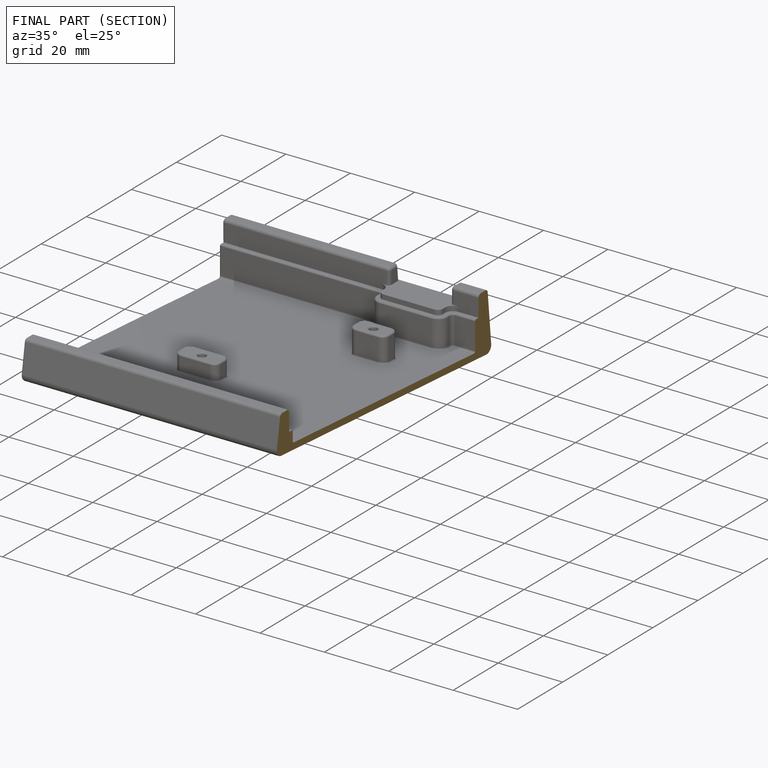
[diagram: finished part — half-section view (interior)]
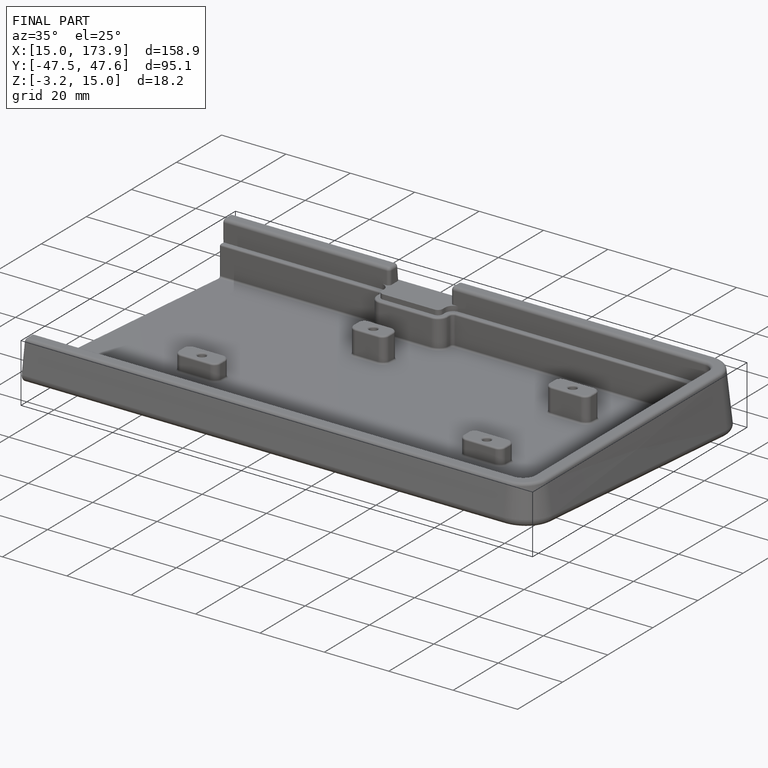
[diagram: finished part — iso view with bounding-box wireframe]
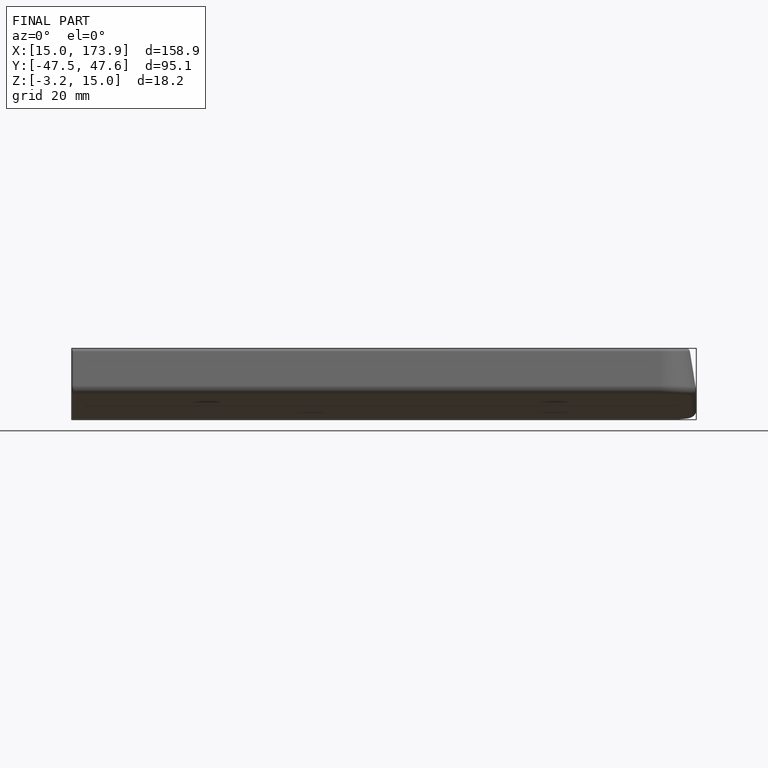
[diagram: finished part — front view with bounding-box wireframe]
